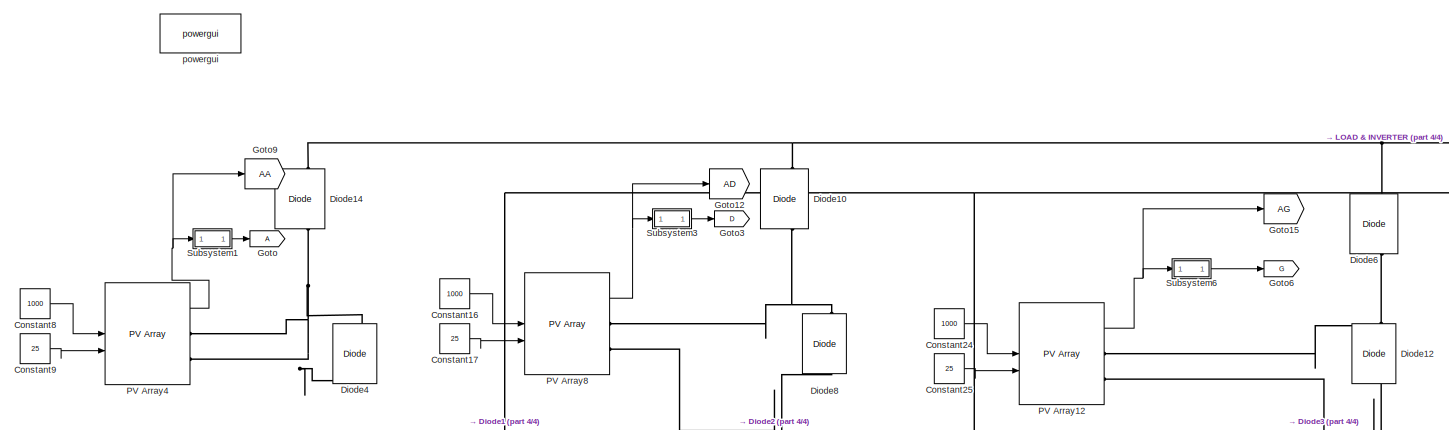
[diagram: root canvas - part 1/4, top left region]
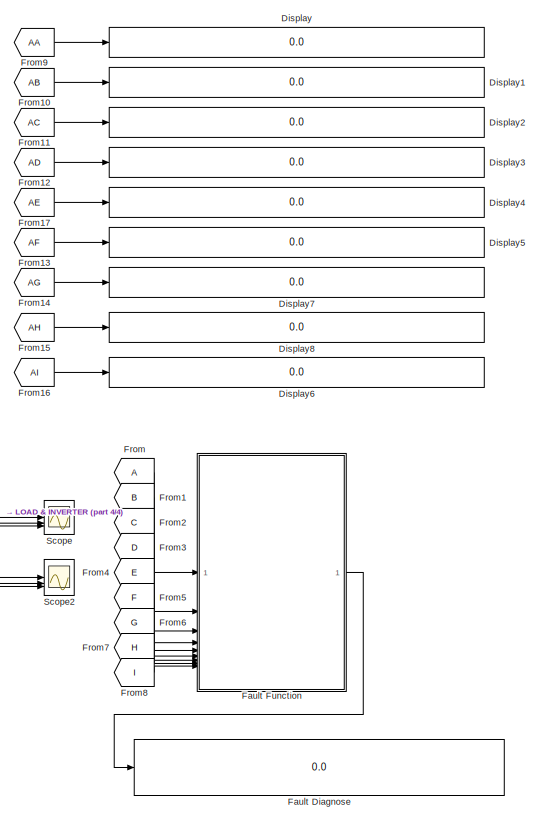
[diagram: root canvas - part 2/4, center side, full height]
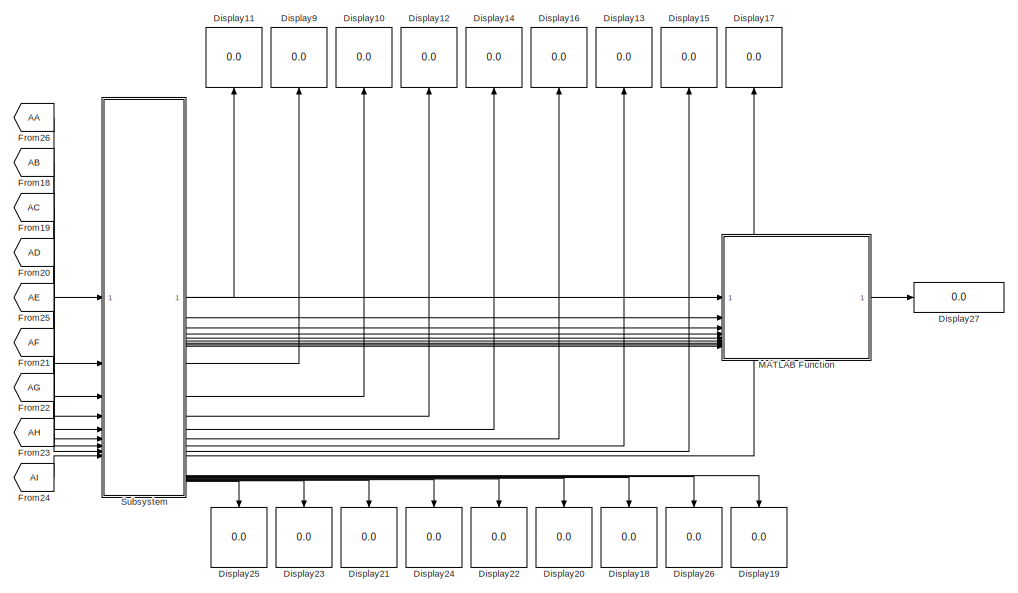
[diagram: root canvas - part 3/4, bottom right region]
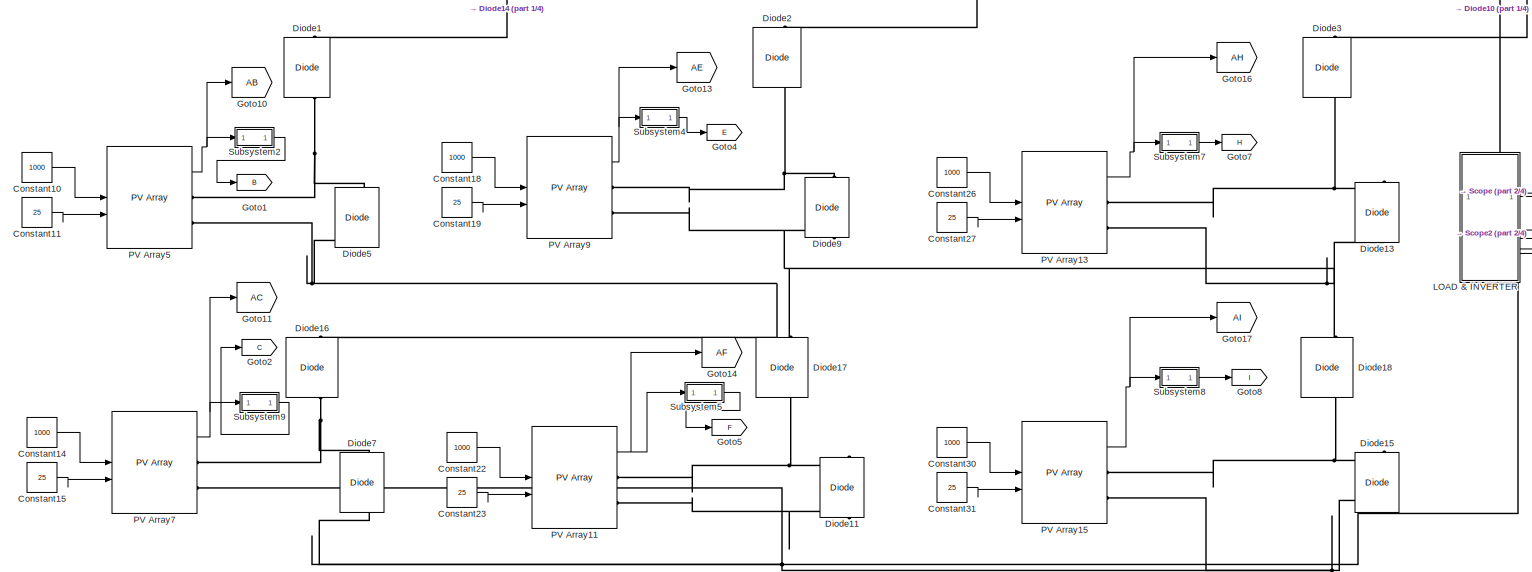
[diagram: root canvas - part 4/4, bottom left region]
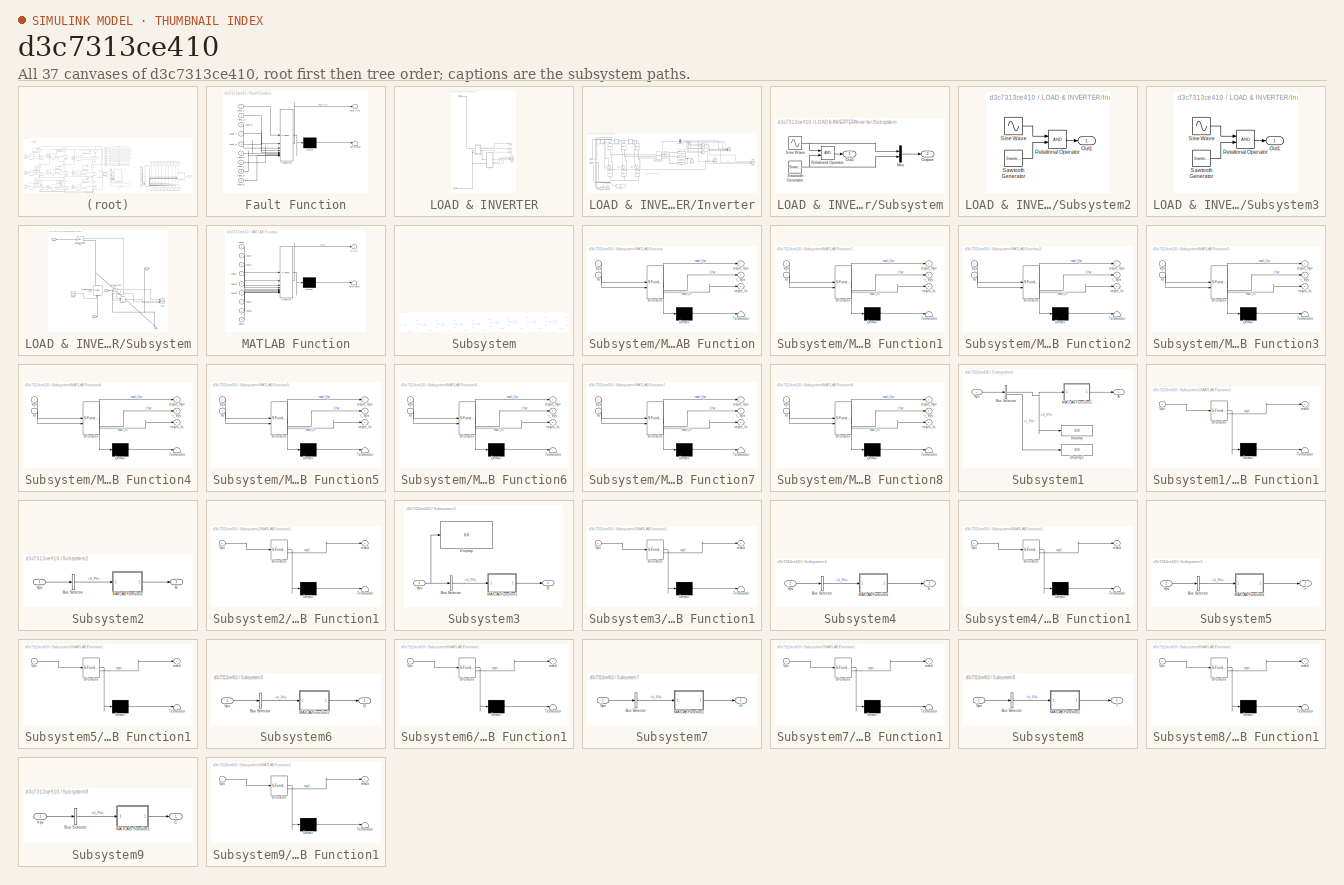
[diagram: thumbnail index - all 37 canvases of the model, root first then tree order]
MODEL slx_d3c7313ce410
KIND model
CONFIG AbsTol = auto
CONFIG EnableMultiTasking = off
CONFIG FixedStep = 1e-5
CONFIG MaxStep = auto
CONFIG MinStep = auto
CONFIG RelTol = 1e-3
CONFIG SampleTimeConstraint = Unconstrained
CONFIG SolverName = ode3
CONFIG StartTime = 0.0
CONFIG StopTime = 1
BLOCK [Constant] Constant10
  Value = 1000
BLOCK [Constant] Constant11
  NameLocation = left
  Value = 25
BLOCK [Constant] Constant14
  Value = 1000
BLOCK [Constant] Constant15
  NameLocation = left
  Value = 25
BLOCK [Constant] Constant16
  Value = 1000
BLOCK [Constant] Constant17
  NameLocation = left
  Value = 25
BLOCK [Constant] Constant18
  Value = 1000
BLOCK [Constant] Constant19
  NameLocation = left
  Value = 25
BLOCK [Constant] Constant22
  Value = 1000
BLOCK [Constant] Constant23
  NameLocation = left
  Value = 25
BLOCK [Constant] Constant24
  Value = 1000
BLOCK [Constant] Constant25
  NameLocation = left
  Value = 25
BLOCK [Constant] Constant26
  Value = 1000
BLOCK [Constant] Constant27
  NameLocation = left
  Value = 25
BLOCK [Constant] Constant30
  Value = 1000
BLOCK [Constant] Constant31
  NameLocation = left
  Value = 25
BLOCK [Constant] Constant8
  Value = 1000
BLOCK [Constant] Constant9
  NameLocation = left
  Value = 25
BLOCK [Reference] Diode1  REF=spsDiodeLib/Diode
  LibrarySourceBlock = sps_lib/Power Electronics/Diode
  NameLocation = right
  SourceBlock = spsDiodeLib/Diode
  SourceType = Diode
BLOCK [Reference] Diode10  REF=spsDiodeLib/Diode
  LibrarySourceBlock = sps_lib/Power Electronics/Diode
  NameLocation = right
  SourceBlock = spsDiodeLib/Diode
  SourceType = Diode
BLOCK [Reference] Diode11  REF=spsDiodeLib/Diode
  LibrarySourceBlock = sps_lib/Power Electronics/Diode
  NameLocation = right
  SourceBlock = spsDiodeLib/Diode
  SourceType = Diode
BLOCK [Reference] Diode12  REF=spsDiodeLib/Diode
  LibrarySourceBlock = sps_lib/Power Electronics/Diode
  NameLocation = right
  SourceBlock = spsDiodeLib/Diode
  SourceType = Diode
BLOCK [Reference] Diode13  REF=spsDiodeLib/Diode
  LibrarySourceBlock = sps_lib/Power Electronics/Diode
  NameLocation = right
  SourceBlock = spsDiodeLib/Diode
  SourceType = Diode
BLOCK [Reference] Diode14  REF=spsDiodeLib/Diode
  LibrarySourceBlock = sps_lib/Power Electronics/Diode
  NameLocation = right
  SourceBlock = spsDiodeLib/Diode
  SourceType = Diode
BLOCK [Reference] Diode15  REF=spsDiodeLib/Diode
  LibrarySourceBlock = sps_lib/Power Electronics/Diode
  NameLocation = right
  SourceBlock = spsDiodeLib/Diode
  SourceType = Diode
BLOCK [Reference] Diode16  REF=spsDiodeLib/Diode
  LibrarySourceBlock = sps_lib/Power Electronics/Diode
  NameLocation = right
  SourceBlock = spsDiodeLib/Diode
  SourceType = Diode
BLOCK [Reference] Diode17  REF=spsDiodeLib/Diode
  LibrarySourceBlock = sps_lib/Power Electronics/Diode
  NameLocation = right
  SourceBlock = spsDiodeLib/Diode
  SourceType = Diode
BLOCK [Reference] Diode18  REF=spsDiodeLib/Diode
  LibrarySourceBlock = sps_lib/Power Electronics/Diode
  NameLocation = right
  SourceBlock = spsDiodeLib/Diode
  SourceType = Diode
BLOCK [Reference] Diode2  REF=spsDiodeLib/Diode
  LibrarySourceBlock = sps_lib/Power Electronics/Diode
  NameLocation = right
  SourceBlock = spsDiodeLib/Diode
  SourceType = Diode
BLOCK [Reference] Diode3  REF=spsDiodeLib/Diode
  LibrarySourceBlock = sps_lib/Power Electronics/Diode
  NameLocation = right
  SourceBlock = spsDiodeLib/Diode
  SourceType = Diode
BLOCK [Reference] Diode4  REF=spsDiodeLib/Diode
  LibrarySourceBlock = sps_lib/Power Electronics/Diode
  NameLocation = right
  SourceBlock = spsDiodeLib/Diode
  SourceType = Diode
BLOCK [Reference] Diode5  REF=spsDiodeLib/Diode
  LibrarySourceBlock = sps_lib/Power Electronics/Diode
  NameLocation = right
  SourceBlock = spsDiodeLib/Diode
  SourceType = Diode
BLOCK [Reference] Diode6  REF=spsDiodeLib/Diode
  LibrarySourceBlock = sps_lib/Power Electronics/Diode
  NameLocation = right
  SourceBlock = spsDiodeLib/Diode
  SourceType = Diode
BLOCK [Reference] Diode7  REF=spsDiodeLib/Diode
  LibrarySourceBlock = sps_lib/Power Electronics/Diode
  NameLocation = right
  SourceBlock = spsDiodeLib/Diode
  SourceType = Diode
BLOCK [Reference] Diode8  REF=spsDiodeLib/Diode
  LibrarySourceBlock = sps_lib/Power Electronics/Diode
  NameLocation = right
  SourceBlock = spsDiodeLib/Diode
  SourceType = Diode
BLOCK [Reference] Diode9  REF=spsDiodeLib/Diode
  LibrarySourceBlock = sps_lib/Power Electronics/Diode
  NameLocation = right
  SourceBlock = spsDiodeLib/Diode
  SourceType = Diode
BLOCK [Display] Display
  Decimation = 1
BLOCK [Display] Display1
  Decimation = 1
BLOCK [Display] Display10
  Decimation = 1
  NameLocation = right
BLOCK [Display] Display11
  Decimation = 1
  NameLocation = right
BLOCK [Display] Display12
  Decimation = 1
  NameLocation = right
BLOCK [Display] Display13
  Decimation = 1
  NameLocation = right
BLOCK [Display] Display14
  Decimation = 1
  NameLocation = right
BLOCK [Display] Display15
  Decimation = 1
  NameLocation = right
BLOCK [Display] Display16
  Decimation = 1
  NameLocation = right
BLOCK [Display] Display17
  Decimation = 1
  NameLocation = right
BLOCK [Display] Display18
  Decimation = 1
  NameLocation = left
BLOCK [Display] Display19
  Decimation = 1
  NameLocation = left
BLOCK [Display] Display2
  Decimation = 1
BLOCK [Display] Display20
  Decimation = 1
  NameLocation = left
BLOCK [Display] Display21
  Decimation = 1
  NameLocation = left
BLOCK [Display] Display22
  Decimation = 1
  NameLocation = left
BLOCK [Display] Display23
  Decimation = 1
  NameLocation = left
BLOCK [Display] Display24
  Decimation = 1
  NameLocation = left
BLOCK [Display] Display25
  Decimation = 1
  NameLocation = left
BLOCK [Display] Display26
  Decimation = 1
  NameLocation = left
BLOCK [Display] Display27
  Decimation = 1
BLOCK [Display] Display3
  Decimation = 1
BLOCK [Display] Display4
  Decimation = 1
BLOCK [Display] Display5
  Decimation = 1
BLOCK [Display] Display6
  Decimation = 1
BLOCK [Display] Display7
  Decimation = 1
BLOCK [Display] Display8
  Decimation = 1
BLOCK [Display] Display9
  Decimation = 1
  NameLocation = right
BLOCK [Display] Fault Diagnose
  Decimation = 1
  Format = long
BLOCK [SubSystem] Fault Function
  ErrorFcn = Stateflow.Translate.translate
  PermitHierarchicalResolution = ExplicitOnly
  SFBlockType = MATLAB Function
  TreatAsAtomicUnit = on
BLOCK [Demux] Fault Function/ Demux 
  Outputs = 1
BLOCK [S-Function] Fault Function/ SFunction 
  EnableBusSupport = on
  FunctionName = sf_sfun
  PortCounts = [9 2]
  SFcnIsStateOwnerBlock = off
  SFunctionDeploymentMode = off
  Tag = Stateflow S-Function 2
BLOCK [Terminator] Fault Function/ Terminator 
BLOCK [Inport] Fault Function/Input_1
BLOCK [Inport] Fault Function/Input_2
  Port = 2
BLOCK [Inport] Fault Function/Input_3
  Port = 3
BLOCK [Inport] Fault Function/Input_4
  Port = 4
BLOCK [Inport] Fault Function/Input_5
  Port = 5
BLOCK [Inport] Fault Function/Input_6
  Port = 6
BLOCK [Inport] Fault Function/Input_7
  Port = 7
BLOCK [Inport] Fault Function/Input_8
  Port = 8
BLOCK [Inport] Fault Function/Input_9
  Port = 9
BLOCK [Outport] Fault Function/inputArray
BLOCK [From] From
BLOCK [From] From1
  GotoTag = B
BLOCK [From] From10
  GotoTag = AB
BLOCK [From] From11
  GotoTag = AC
BLOCK [From] From12
  GotoTag = AD
BLOCK [From] From13
  GotoTag = AF
BLOCK [From] From14
  GotoTag = AG
BLOCK [From] From15
  GotoTag = AH
BLOCK [From] From16
  GotoTag = AI
BLOCK [From] From17
  GotoTag = AE
BLOCK [From] From18
  GotoTag = AB
BLOCK [From] From19
  GotoTag = AC
BLOCK [From] From2
  GotoTag = C
BLOCK [From] From20
  GotoTag = AD
BLOCK [From] From21
  GotoTag = AF
BLOCK [From] From22
  GotoTag = AG
BLOCK [From] From23
  GotoTag = AH
BLOCK [From] From24
  GotoTag = AI
BLOCK [From] From25
  GotoTag = AE
BLOCK [From] From26
  GotoTag = AA
BLOCK [From] From3
  GotoTag = D
BLOCK [From] From4
  GotoTag = E
BLOCK [From] From5
  GotoTag = F
BLOCK [From] From6
  GotoTag = G
BLOCK [From] From7
  GotoTag = H
BLOCK [From] From8
  GotoTag = I
BLOCK [From] From9
  GotoTag = AA
BLOCK [Goto] Goto
BLOCK [Goto] Goto1
  GotoTag = B
BLOCK [Goto] Goto10
  GotoTag = AB
BLOCK [Goto] Goto11
  GotoTag = AC
BLOCK [Goto] Goto12
  GotoTag = AD
BLOCK [Goto] Goto13
  GotoTag = AE
BLOCK [Goto] Goto14
  GotoTag = AF
BLOCK [Goto] Goto15
  GotoTag = AG
BLOCK [Goto] Goto16
  GotoTag = AH
BLOCK [Goto] Goto17
  GotoTag = AI
BLOCK [Goto] Goto2
  GotoTag = C
BLOCK [Goto] Goto3
  GotoTag = D
BLOCK [Goto] Goto4
  GotoTag = E
BLOCK [Goto] Goto5
  GotoTag = F
BLOCK [Goto] Goto6
  GotoTag = G
BLOCK [Goto] Goto7
  GotoTag = H
BLOCK [Goto] Goto8
  GotoTag = I
BLOCK [Goto] Goto9
  GotoTag = AA
BLOCK [SubSystem] LOAD & INVERTER
  PortSchema = {"entries":[{"content":{"sides":[{"content":{},"type":"ConnectorPlacement.EquallySpacedRectSide","uuid":"9d5a924a-1d3a-4741-a2b7-92be7c614fd7"},{"content":{"connectorIds":["Out1","Out2","Out3","Out4","Out5","Out6"],"side":"RIGHT"},"type":"ConnectorPlacement.EquallySpacedRectSide","uuid":"42e89420-eace-4661-8437-77e02d17d38a"},{"content":{"connectorIds":["LConn1"],"side":"TOP"},"type":"ConnectorPla...<+413ch>
BLOCK [PMIOPort] LOAD & INVERTER/+
  Side = Left
BLOCK [PMIOPort] LOAD & INVERTER/-1
  Port = 2
  Side = Right
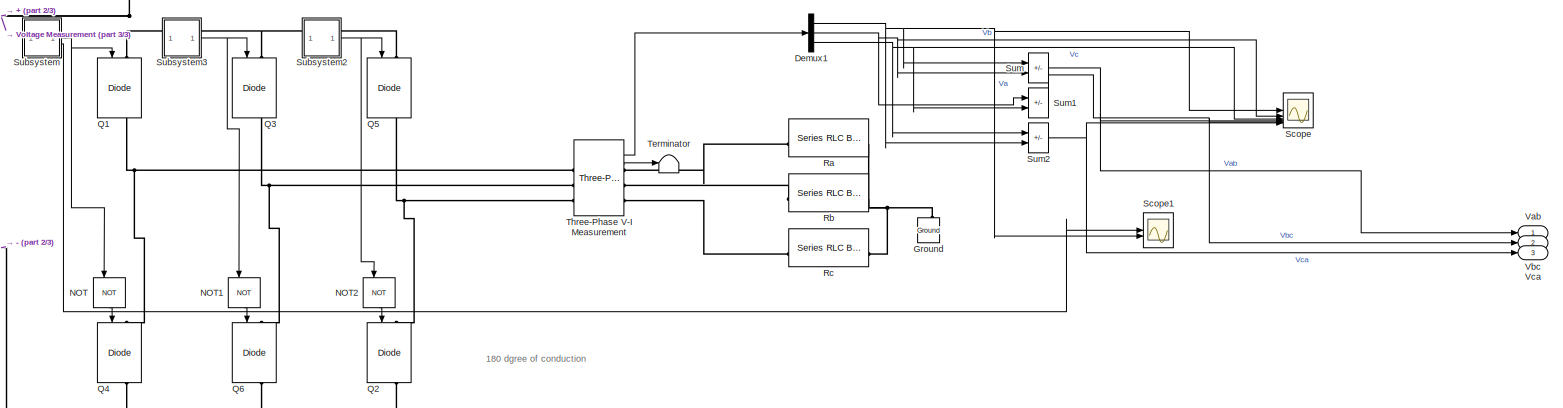
[diagram: LOAD & INVERTER/Inverter - part 1/3, full width, middle band]
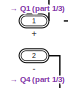
[diagram: LOAD & INVERTER/Inverter - part 2/3, middle left region]
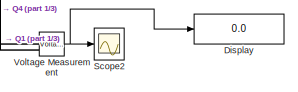
[diagram: LOAD & INVERTER/Inverter - part 3/3, bottom left region]
BLOCK [SubSystem] LOAD & INVERTER/Inverter
BLOCK [PMIOPort] LOAD & INVERTER/Inverter/+
  Side = Left
BLOCK [PMIOPort] LOAD & INVERTER/Inverter/-
  Port = 2
  Side = Left
BLOCK [Demux] LOAD & INVERTER/Inverter/Demux1
  Outputs = 3
BLOCK [Display] LOAD & INVERTER/Inverter/Display
  Decimation = 1
BLOCK [Reference] LOAD & INVERTER/Inverter/Ground  REF=spsGroundLib/Ground
  LibrarySourceBlock = sps_lib/Utilities/Ground
  NameLocation = right
  SourceBlock = spsGroundLib/Ground
  SourceType = Ground
BLOCK [Logic] LOAD & INVERTER/Inverter/NOT
  AllPortsSameDT = off
  NameLocation = left
  Operator = NOT
  OutDataTypeStr = boolean
BLOCK [Logic] LOAD & INVERTER/Inverter/NOT1
  AllPortsSameDT = off
  NameLocation = left
  Operator = NOT
  OutDataTypeStr = boolean
BLOCK [Logic] LOAD & INVERTER/Inverter/NOT2
  AllPortsSameDT = off
  NameLocation = left
  Operator = NOT
  OutDataTypeStr = boolean
BLOCK [Reference] LOAD & INVERTER/Inverter/Q1  REF=spsIGBTDiodeLib/IGBT//Diode
  LibrarySourceBlock = sps_lib/Power Electronics/IGBT//Diode
  NameLocation = left
  SourceBlock = spsIGBTDiodeLib/IGBT//Diode
  SourceType = IGBT/Diode
BLOCK [Reference] LOAD & INVERTER/Inverter/Q2  REF=spsIGBTDiodeLib/IGBT//Diode
  LibrarySourceBlock = sps_lib/Power Electronics/IGBT//Diode
  NameLocation = left
  SourceBlock = spsIGBTDiodeLib/IGBT//Diode
  SourceType = IGBT/Diode
BLOCK [Reference] LOAD & INVERTER/Inverter/Q3  REF=spsIGBTDiodeLib/IGBT//Diode
  LibrarySourceBlock = sps_lib/Power Electronics/IGBT//Diode
  NameLocation = left
  SourceBlock = spsIGBTDiodeLib/IGBT//Diode
  SourceType = IGBT/Diode
BLOCK [Reference] LOAD & INVERTER/Inverter/Q4  REF=spsIGBTDiodeLib/IGBT//Diode
  LibrarySourceBlock = sps_lib/Power Electronics/IGBT//Diode
  NameLocation = left
  SourceBlock = spsIGBTDiodeLib/IGBT//Diode
  SourceType = IGBT/Diode
BLOCK [Reference] LOAD & INVERTER/Inverter/Q5  REF=spsIGBTDiodeLib/IGBT//Diode
  LibrarySourceBlock = sps_lib/Power Electronics/IGBT//Diode
  NameLocation = left
  SourceBlock = spsIGBTDiodeLib/IGBT//Diode
  SourceType = IGBT/Diode
BLOCK [Reference] LOAD & INVERTER/Inverter/Q6  REF=spsIGBTDiodeLib/IGBT//Diode
  LibrarySourceBlock = sps_lib/Power Electronics/IGBT//Diode
  NameLocation = left
  SourceBlock = spsIGBTDiodeLib/IGBT//Diode
  SourceType = IGBT/Diode
BLOCK [Reference] LOAD & INVERTER/Inverter/Ra  REF=spsSeriesRLCBranchLib/Series RLC Branch
  LibrarySourceBlock = sps_lib/Passives/Series RLC Branch
  SourceBlock = spsSeriesRLCBranchLib/Series RLC Branch
  SourceType = Series RLC Branch
BLOCK [Reference] LOAD & INVERTER/Inverter/Rb  REF=spsSeriesRLCBranchLib/Series RLC Branch
  LibrarySourceBlock = sps_lib/Passives/Series RLC Branch
  SourceBlock = spsSeriesRLCBranchLib/Series RLC Branch
  SourceType = Series RLC Branch
BLOCK [Reference] LOAD & INVERTER/Inverter/Rc  REF=spsSeriesRLCBranchLib/Series RLC Branch
  LibrarySourceBlock = sps_lib/Passives/Series RLC Branch
  SourceBlock = spsSeriesRLCBranchLib/Series RLC Branch
  SourceType = Series RLC Branch
BLOCK [Scope] LOAD & INVERTER/Inverter/Scope
  Floating = off
  NumInputPorts = 6
  ScopeSpecificationString = Simulink.scopes.TimeScopeBlockCfg('CurrentConfiguration', extmgr.ConfigurationSet(extmgr.Configuration('Core','General UI',true),extmgr.Configuration('Core','Source UI',true),extmgr.Configuration('Sources','WiredSimulink',true,'DataLoggingVariableName','ScopeData1'),extmgr.Configuration('Visuals','Time Domain',true,'SerializedDisplays',{struct('MinYLimReal','-83.325','MaxYLimReal','83.325','YLabel...<+5497ch>
BLOCK [Scope] LOAD & INVERTER/Inverter/Scope1
  Floating = off
  NumInputPorts = 2
  ScopeSpecificationString = Simulink.scopes.TimeScopeBlockCfg('CurrentConfiguration', extmgr.ConfigurationSet(extmgr.Configuration('Core','General UI',true),extmgr.Configuration('Core','Source UI',true),extmgr.Configuration('Sources','WiredSimulink',true),extmgr.Configuration('Visuals','Time Domain',true,'SerializedDisplays',{struct('MinYLimReal','-1.25','MaxYLimReal','1.25','YLabelReal','','MinYLimMag','0.00000','MaxYLimMag...<+2263ch>
BLOCK [Scope] LOAD & INVERTER/Inverter/Scope2
  Floating = off
  NumInputPorts = 1
  ScopeSpecificationString = Simulink.scopes.TimeScopeBlockCfg('CurrentConfiguration', extmgr.ConfigurationSet(extmgr.Configuration('Core','General UI',true),extmgr.Configuration('Core','Source UI',true),extmgr.Configuration('Sources','WiredSimulink',true,'DataLoggingVariableName','ScopeData3'),extmgr.Configuration('Visuals','Time Domain',true,'SerializedDisplays',{struct('MinYLimReal','-1.00000','MaxYLimReal','1.00000','YLab...<+1430ch>
BLOCK [SubSystem] LOAD & INVERTER/Inverter/Subsystem
BLOCK [Mux] LOAD & INVERTER/Inverter/Subsystem/Mux
  DisplayOption = bar
  Inputs = 2
BLOCK [Outport] LOAD & INVERTER/Inverter/Subsystem/Out1
BLOCK [Outport] LOAD & INVERTER/Inverter/Subsystem/Outport
  Port = 2
BLOCK [RelationalOperator] LOAD & INVERTER/Inverter/Subsystem/Relational Operator
  InputSameDT = off
  OutDataTypeStr = boolean
  RndMeth = Simplest
BLOCK [Reference] LOAD & INVERTER/Inverter/Subsystem/Sawtooth Generator  REF=spsSawtoothGeneratorLib/Sawtooth
Generator
  LibrarySourceBlock = sps_lib/Sources/Signal Generator Sources/Sawtooth\nGenerator
  SourceBlock = spsSawtoothGeneratorLib/Sawtooth\nGenerator
  SourceType = Sawtooth Generator
BLOCK [Sin] LOAD & INVERTER/Inverter/Subsystem/Sine Wave
  Amplitude = 0.9
  Frequency = 2*pi*50
  SampleTime = 0
BLOCK [SubSystem] LOAD & INVERTER/Inverter/Subsystem2
BLOCK [Outport] LOAD & INVERTER/Inverter/Subsystem2/Out1
BLOCK [RelationalOperator] LOAD & INVERTER/Inverter/Subsystem2/Relational Operator
  InputSameDT = off
  OutDataTypeStr = boolean
  RndMeth = Simplest
BLOCK [Reference] LOAD & INVERTER/Inverter/Subsystem2/Sawtooth Generator  REF=spsSawtoothGeneratorLib/Sawtooth
Generator
  LibrarySourceBlock = sps_lib/Sources/Signal Generator Sources/Sawtooth\nGenerator
  SourceBlock = spsSawtoothGeneratorLib/Sawtooth\nGenerator
  SourceType = Sawtooth Generator
BLOCK [Sin] LOAD & INVERTER/Inverter/Subsystem2/Sine Wave
  Amplitude = 0.9
  Frequency = 2*pi*50
  Phase = 240*pi/180
  SampleTime = 0
BLOCK [SubSystem] LOAD & INVERTER/Inverter/Subsystem3
BLOCK [Outport] LOAD & INVERTER/Inverter/Subsystem3/Out1
BLOCK [RelationalOperator] LOAD & INVERTER/Inverter/Subsystem3/Relational Operator
  InputSameDT = off
  OutDataTypeStr = boolean
  RndMeth = Simplest
BLOCK [Reference] LOAD & INVERTER/Inverter/Subsystem3/Sawtooth Generator  REF=spsSawtoothGeneratorLib/Sawtooth
Generator
  LibrarySourceBlock = sps_lib/Sources/Signal Generator Sources/Sawtooth\nGenerator
  SourceBlock = spsSawtoothGeneratorLib/Sawtooth\nGenerator
  SourceType = Sawtooth Generator
BLOCK [Sin] LOAD & INVERTER/Inverter/Subsystem3/Sine Wave
  Amplitude = 0.9
  Frequency = 2*pi*50
  Phase = 120*pi/180
  SampleTime = 0
BLOCK [Sum] LOAD & INVERTER/Inverter/Sum
  IconShape = rectangular
  Inputs = |+-
BLOCK [Sum] LOAD & INVERTER/Inverter/Sum1
  IconShape = rectangular
  Inputs = |+-
BLOCK [Sum] LOAD & INVERTER/Inverter/Sum2
  IconShape = rectangular
  Inputs = |+-
BLOCK [Terminator] LOAD & INVERTER/Inverter/Terminator
BLOCK [Reference] LOAD & INVERTER/Inverter/Three-Phase V-I Measurement  REF=spsThreePhaseVIMeasurementLib/Three-Phase
V-I Measurement
  LibrarySourceBlock = sps_lib/Sensors and Measurements/Three-Phase\nV-I Measurement
  SourceBlock = spsThreePhaseVIMeasurementLib/Three-Phase\nV-I Measurement
  SourceType = Three-Phase VI Measurement
BLOCK [Outport] LOAD & INVERTER/Inverter/Vab
BLOCK [Outport] LOAD & INVERTER/Inverter/Vbc
  Port = 2
BLOCK [Outport] LOAD & INVERTER/Inverter/Vca
  Port = 3
BLOCK [Reference] LOAD & INVERTER/Inverter/Voltage Measurement  REF=spsVoltageMeasurementLib/Voltage Measurement
  LibrarySourceBlock = sps_lib/Sensors and Measurements/Voltage Measurement
  SourceBlock = spsVoltageMeasurementLib/Voltage Measurement
  SourceType = Voltage Measurement
  UserDataPersistent = on
BLOCK [Outport] LOAD & INVERTER/Ipv
  Port = 2
BLOCK [Outport] LOAD & INVERTER/Ppv
  Port = 3
BLOCK [SubSystem] LOAD & INVERTER/Subsystem
BLOCK [PMIOPort] LOAD & INVERTER/Subsystem/+
  Side = Left
BLOCK [PMIOPort] LOAD & INVERTER/Subsystem/+1
  Port = 2
  Side = Right
BLOCK [PMIOPort] LOAD & INVERTER/Subsystem/-
  Port = 3
  Side = Left
BLOCK [PMIOPort] LOAD & INVERTER/Subsystem/-1
  Port = 4
  Side = Left
BLOCK [Reference] LOAD & INVERTER/Subsystem/Controlled Voltage Source  REF=spsControlledVoltageSourceLib/Controlled Voltage Source
  LibrarySourceBlock = sps_lib/Sources/Controlled Voltage Source
  SourceBlock = spsControlledVoltageSourceLib/Controlled Voltage Source
  SourceType = Controlled Voltage Source
BLOCK [Reference] LOAD & INVERTER/Subsystem/Current Measurement  REF=spsCurrentMeasurementLib/Current Measurement
  LibrarySourceBlock = sps_lib/Sensors and Measurements/Current Measurement
  SourceBlock = spsCurrentMeasurementLib/Current Measurement
  SourceType = Current Measurement
  UserDataPersistent = on
BLOCK [Outport] LOAD & INVERTER/Subsystem/Out3
  Port = 3
BLOCK [Product] LOAD & INVERTER/Subsystem/Product
BLOCK [Reference] LOAD & INVERTER/Subsystem/Ramp  REF=simulink/Sources/Ramp
  SourceBlock = simulink/Sources/Ramp
  SourceType = Ramp
BLOCK [Reference] LOAD & INVERTER/Subsystem/Voltage Measurement  REF=spsVoltageMeasurementLib/Voltage Measurement
  LibrarySourceBlock = sps_lib/Sensors and Measurements/Voltage Measurement
  SourceBlock = spsVoltageMeasurementLib/Voltage Measurement
  SourceType = Voltage Measurement
  UserDataPersistent = on
BLOCK [Outport] LOAD & INVERTER/Subsystem/i
  Port = 2
BLOCK [Outport] LOAD & INVERTER/Subsystem/v
BLOCK [Outport] LOAD & INVERTER/Vab
  Port = 4
BLOCK [Outport] LOAD & INVERTER/Vbc
  Port = 5
BLOCK [Outport] LOAD & INVERTER/Vca
  Port = 6
BLOCK [Outport] LOAD & INVERTER/Vpv
BLOCK [SubSystem] MATLAB Function
  ErrorFcn = Stateflow.Translate.translate
  PermitHierarchicalResolution = ExplicitOnly
  SFBlockType = MATLAB Function
  TreatAsAtomicUnit = on
BLOCK [Demux] MATLAB Function/ Demux 
  Outputs = 1
BLOCK [S-Function] MATLAB Function/ SFunction 
  EnableBusSupport = on
  FunctionName = sf_sfun
  PortCounts = [9 2]
  SFcnIsStateOwnerBlock = off
  SFunctionDeploymentMode = off
  Tag = Stateflow S-Function 20
BLOCK [Terminator] MATLAB Function/ Terminator 
BLOCK [Outport] MATLAB Function/FAULT
BLOCK [Inport] MATLAB Function/input1
BLOCK [Inport] MATLAB Function/input2
  Port = 2
BLOCK [Inport] MATLAB Function/input3
  Port = 3
BLOCK [Inport] MATLAB Function/input4
  Port = 4
BLOCK [Inport] MATLAB Function/input5
  Port = 5
BLOCK [Inport] MATLAB Function/input6
  Port = 6
BLOCK [Inport] MATLAB Function/input7
  Port = 7
BLOCK [Inport] MATLAB Function/input8
  Port = 8
BLOCK [Inport] MATLAB Function/input9
  Port = 9
BLOCK [Reference] PV Array11  REF=spsPVArrayLib/PV Array
  LibrarySourceBlock = sps_lib/Sources/PV Array
  SourceBlock = spsPVArrayLib/PV Array
  SourceType = PV array
BLOCK [Reference] PV Array12  REF=spsPVArrayLib/PV Array
  LibrarySourceBlock = sps_lib/Sources/PV Array
  SourceBlock = spsPVArrayLib/PV Array
  SourceType = PV array
BLOCK [Reference] PV Array13  REF=spsPVArrayLib/PV Array
  LibrarySourceBlock = sps_lib/Sources/PV Array
  SourceBlock = spsPVArrayLib/PV Array
  SourceType = PV array
BLOCK [Reference] PV Array15  REF=spsPVArrayLib/PV Array
  LibrarySourceBlock = sps_lib/Sources/PV Array
  SourceBlock = spsPVArrayLib/PV Array
  SourceType = PV array
BLOCK [Reference] PV Array4  REF=spsPVArrayLib/PV Array
  LibrarySourceBlock = sps_lib/Sources/PV Array
  SourceBlock = spsPVArrayLib/PV Array
  SourceType = PV array
BLOCK [Reference] PV Array5  REF=spsPVArrayLib/PV Array
  LibrarySourceBlock = sps_lib/Sources/PV Array
  SourceBlock = spsPVArrayLib/PV Array
  SourceType = PV array
BLOCK [Reference] PV Array7  REF=spsPVArrayLib/PV Array
  LibrarySourceBlock = sps_lib/Sources/PV Array
  SourceBlock = spsPVArrayLib/PV Array
  SourceType = PV array
BLOCK [Reference] PV Array8  REF=spsPVArrayLib/PV Array
  LibrarySourceBlock = sps_lib/Sources/PV Array
  SourceBlock = spsPVArrayLib/PV Array
  SourceType = PV array
BLOCK [Reference] PV Array9  REF=spsPVArrayLib/PV Array
  LibrarySourceBlock = sps_lib/Sources/PV Array
  SourceBlock = spsPVArrayLib/PV Array
  SourceType = PV array
BLOCK [Scope] Scope
  Floating = off
  NumInputPorts = 3
  ScopeSpecificationString = Simulink.scopes.TimeScopeBlockCfg('CurrentConfiguration', extmgr.ConfigurationSet(extmgr.Configuration('Core','General UI',true),extmgr.Configuration('Core','Source UI',true),extmgr.Configuration('Sources','WiredSimulink',true),extmgr.Configuration('Visuals','Time Domain',true,'SerializedDisplays',{struct('MinYLimReal','-6.12236','MaxYLimReal','55.10122','YLabelReal','','MinYLimMag','0.00000','Max...<+2933ch>
BLOCK [Scope] Scope2
  Floating = off
  NumInputPorts = 3
  ScopeSpecificationString = Simulink.scopes.TimeScopeBlockCfg('CurrentConfiguration', extmgr.ConfigurationSet(extmgr.Configuration('Core','General UI',true),extmgr.Configuration('Core','Source UI',true),extmgr.Configuration('Sources','WiredSimulink',true,'DataLoggingVariableName','ScopeData1'),extmgr.Configuration('Visuals','Time Domain',true,'SerializedDisplays',{struct('MinYLimReal','-138.22886','MaxYLimReal','137.16394','...<+3093ch>
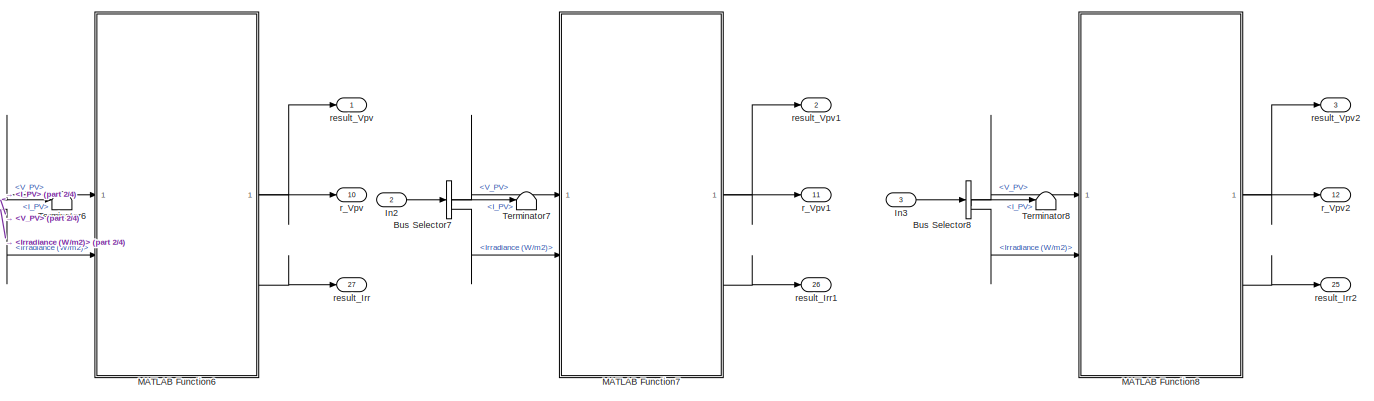
[diagram: Subsystem - part 1/4, right side, full height]
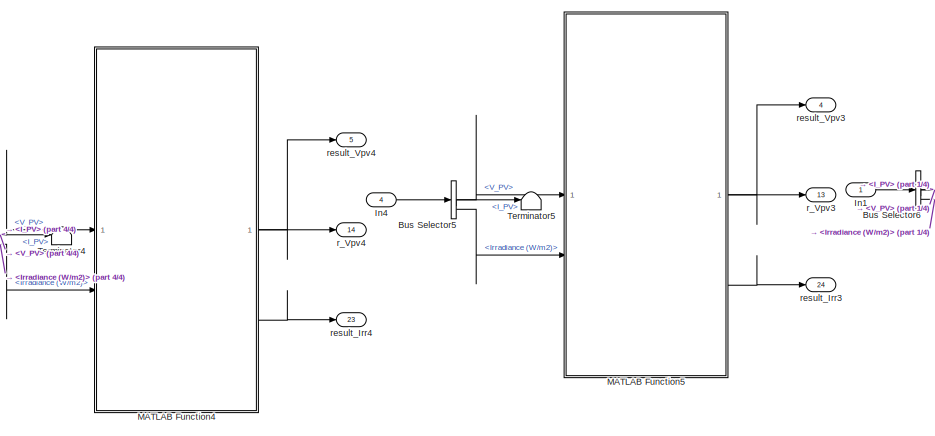
[diagram: Subsystem - part 2/4, center side, full height]
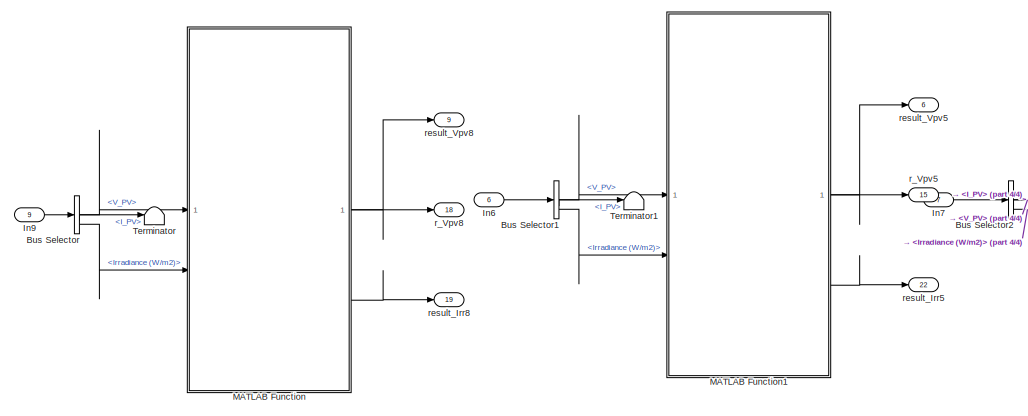
[diagram: Subsystem - part 3/4, left side, full height]
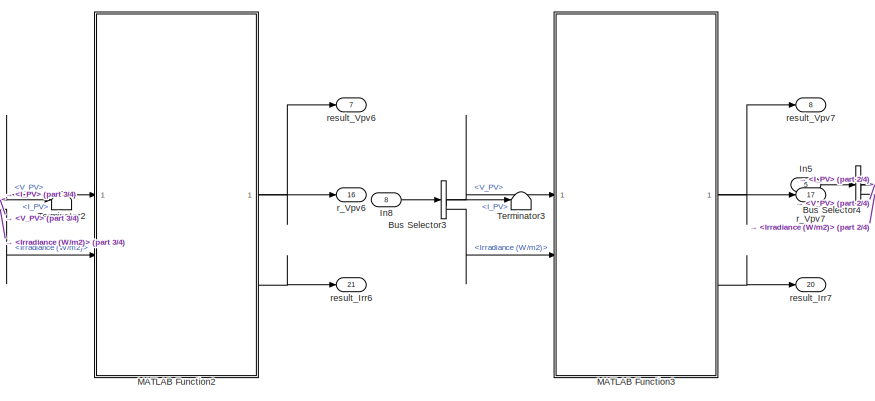
[diagram: Subsystem - part 4/4, center side, full height]
BLOCK [SubSystem] Subsystem
BLOCK [BusSelector] Subsystem/Bus Selector
  OutputSignals = V_PV,I_PV,Irradiance (W/m2)
BLOCK [BusSelector] Subsystem/Bus Selector1
  OutputSignals = V_PV,I_PV,Irradiance (W/m2)
BLOCK [BusSelector] Subsystem/Bus Selector2
  OutputSignals = V_PV,I_PV,Irradiance (W/m2)
BLOCK [BusSelector] Subsystem/Bus Selector3
  OutputSignals = V_PV,I_PV,Irradiance (W/m2)
BLOCK [BusSelector] Subsystem/Bus Selector4
  OutputSignals = V_PV,I_PV,Irradiance (W/m2)
BLOCK [BusSelector] Subsystem/Bus Selector5
  OutputSignals = V_PV,I_PV,Irradiance (W/m2)
BLOCK [BusSelector] Subsystem/Bus Selector6
  OutputSignals = V_PV,I_PV,Irradiance (W/m2)
BLOCK [BusSelector] Subsystem/Bus Selector7
  OutputSignals = V_PV,I_PV,Irradiance (W/m2)
BLOCK [BusSelector] Subsystem/Bus Selector8
  OutputSignals = V_PV,I_PV,Irradiance (W/m2)
BLOCK [Inport] Subsystem/In1
BLOCK [Inport] Subsystem/In2
  Port = 2
BLOCK [Inport] Subsystem/In3
  Port = 3
BLOCK [Inport] Subsystem/In4
  Port = 4
BLOCK [Inport] Subsystem/In5
  Port = 5
BLOCK [Inport] Subsystem/In6
  Port = 6
BLOCK [Inport] Subsystem/In7
  Port = 7
BLOCK [Inport] Subsystem/In8
  Port = 8
BLOCK [Inport] Subsystem/In9
  Port = 9
BLOCK [SubSystem] Subsystem/MATLAB Function
  ErrorFcn = Stateflow.Translate.translate
  PermitHierarchicalResolution = ExplicitOnly
  SFBlockType = MATLAB Function
  TreatAsAtomicUnit = on
BLOCK [Demux] Subsystem/MATLAB Function/ Demux 
  Outputs = 1
BLOCK [S-Function] Subsystem/MATLAB Function/ SFunction 
  EnableBusSupport = on
  FunctionName = sf_sfun
  PortCounts = [2 4]
  SFcnIsStateOwnerBlock = off
  SFunctionDeploymentMode = off
  Tag = Stateflow S-Function 11
BLOCK [Terminator] Subsystem/MATLAB Function/ Terminator 
BLOCK [Inport] Subsystem/MATLAB Function/Irr
  Port = 2
BLOCK [Inport] Subsystem/MATLAB Function/Vpv
BLOCK [Outport] Subsystem/MATLAB Function/r_Vpv
  Port = 2
BLOCK [Outport] Subsystem/MATLAB Function/result_Irr
  Port = 3
BLOCK [Outport] Subsystem/MATLAB Function/result_Vpv
BLOCK [SubSystem] Subsystem/MATLAB Function1
  ErrorFcn = Stateflow.Translate.translate
  PermitHierarchicalResolution = ExplicitOnly
  SFBlockType = MATLAB Function
  TreatAsAtomicUnit = on
BLOCK [Demux] Subsystem/MATLAB Function1/ Demux 
  Outputs = 1
BLOCK [S-Function] Subsystem/MATLAB Function1/ SFunction 
  EnableBusSupport = on
  FunctionName = sf_sfun
  PortCounts = [2 4]
  SFcnIsStateOwnerBlock = off
  SFunctionDeploymentMode = off
  Tag = Stateflow S-Function 12
BLOCK [Terminator] Subsystem/MATLAB Function1/ Terminator 
BLOCK [Inport] Subsystem/MATLAB Function1/Irr
  Port = 2
BLOCK [Inport] Subsystem/MATLAB Function1/Vpv
BLOCK [Outport] Subsystem/MATLAB Function1/r_Vpv
  Port = 2
BLOCK [Outport] Subsystem/MATLAB Function1/result_Irr
  Port = 3
BLOCK [Outport] Subsystem/MATLAB Function1/result_Vpv
BLOCK [SubSystem] Subsystem/MATLAB Function2
  ErrorFcn = Stateflow.Translate.translate
  PermitHierarchicalResolution = ExplicitOnly
  SFBlockType = MATLAB Function
  TreatAsAtomicUnit = on
BLOCK [Demux] Subsystem/MATLAB Function2/ Demux 
  Outputs = 1
BLOCK [S-Function] Subsystem/MATLAB Function2/ SFunction 
  EnableBusSupport = on
  FunctionName = sf_sfun
  PortCounts = [2 4]
  SFcnIsStateOwnerBlock = off
  SFunctionDeploymentMode = off
  Tag = Stateflow S-Function 13
BLOCK [Terminator] Subsystem/MATLAB Function2/ Terminator 
BLOCK [Inport] Subsystem/MATLAB Function2/Irr
  Port = 2
BLOCK [Inport] Subsystem/MATLAB Function2/Vpv
BLOCK [Outport] Subsystem/MATLAB Function2/r_Vpv
  Port = 2
BLOCK [Outport] Subsystem/MATLAB Function2/result_Irr
  Port = 3
BLOCK [Outport] Subsystem/MATLAB Function2/result_Vpv
BLOCK [SubSystem] Subsystem/MATLAB Function3
  ErrorFcn = Stateflow.Translate.translate
  PermitHierarchicalResolution = ExplicitOnly
  SFBlockType = MATLAB Function
  TreatAsAtomicUnit = on
BLOCK [Demux] Subsystem/MATLAB Function3/ Demux 
  Outputs = 1
BLOCK [S-Function] Subsystem/MATLAB Function3/ SFunction 
  EnableBusSupport = on
  FunctionName = sf_sfun
  PortCounts = [2 4]
  SFcnIsStateOwnerBlock = off
  SFunctionDeploymentMode = off
  Tag = Stateflow S-Function 14
BLOCK [Terminator] Subsystem/MATLAB Function3/ Terminator 
BLOCK [Inport] Subsystem/MATLAB Function3/Irr
  Port = 2
BLOCK [Inport] Subsystem/MATLAB Function3/Vpv
BLOCK [Outport] Subsystem/MATLAB Function3/r_Vpv
  Port = 2
BLOCK [Outport] Subsystem/MATLAB Function3/result_Irr
  Port = 3
BLOCK [Outport] Subsystem/MATLAB Function3/result_Vpv
BLOCK [SubSystem] Subsystem/MATLAB Function4
  ErrorFcn = Stateflow.Translate.translate
  PermitHierarchicalResolution = ExplicitOnly
  SFBlockType = MATLAB Function
  TreatAsAtomicUnit = on
BLOCK [Demux] Subsystem/MATLAB Function4/ Demux 
  Outputs = 1
BLOCK [S-Function] Subsystem/MATLAB Function4/ SFunction 
  EnableBusSupport = on
  FunctionName = sf_sfun
  PortCounts = [2 4]
  SFcnIsStateOwnerBlock = off
  SFunctionDeploymentMode = off
  Tag = Stateflow S-Function 15
BLOCK [Terminator] Subsystem/MATLAB Function4/ Terminator 
BLOCK [Inport] Subsystem/MATLAB Function4/Irr
  Port = 2
BLOCK [Inport] Subsystem/MATLAB Function4/Vpv
BLOCK [Outport] Subsystem/MATLAB Function4/r_Vpv
  Port = 2
BLOCK [Outport] Subsystem/MATLAB Function4/result_Irr
  Port = 3
BLOCK [Outport] Subsystem/MATLAB Function4/result_Vpv
BLOCK [SubSystem] Subsystem/MATLAB Function5
  ErrorFcn = Stateflow.Translate.translate
  PermitHierarchicalResolution = ExplicitOnly
  SFBlockType = MATLAB Function
  TreatAsAtomicUnit = on
BLOCK [Demux] Subsystem/MATLAB Function5/ Demux 
  Outputs = 1
BLOCK [S-Function] Subsystem/MATLAB Function5/ SFunction 
  EnableBusSupport = on
  FunctionName = sf_sfun
  PortCounts = [2 4]
  SFcnIsStateOwnerBlock = off
  SFunctionDeploymentMode = off
  Tag = Stateflow S-Function 16
BLOCK [Terminator] Subsystem/MATLAB Function5/ Terminator 
BLOCK [Inport] Subsystem/MATLAB Function5/Irr
  Port = 2
BLOCK [Inport] Subsystem/MATLAB Function5/Vpv
BLOCK [Outport] Subsystem/MATLAB Function5/r_Vpv
  Port = 2
BLOCK [Outport] Subsystem/MATLAB Function5/result_Irr
  Port = 3
BLOCK [Outport] Subsystem/MATLAB Function5/result_Vpv
BLOCK [SubSystem] Subsystem/MATLAB Function6
  ErrorFcn = Stateflow.Translate.translate
  PermitHierarchicalResolution = ExplicitOnly
  SFBlockType = MATLAB Function
  TreatAsAtomicUnit = on
BLOCK [Demux] Subsystem/MATLAB Function6/ Demux 
  Outputs = 1
BLOCK [S-Function] Subsystem/MATLAB Function6/ SFunction 
  EnableBusSupport = on
  FunctionName = sf_sfun
  PortCounts = [2 4]
  SFcnIsStateOwnerBlock = off
  SFunctionDeploymentMode = off
  Tag = Stateflow S-Function 17
BLOCK [Terminator] Subsystem/MATLAB Function6/ Terminator 
BLOCK [Inport] Subsystem/MATLAB Function6/Irr
  Port = 2
BLOCK [Inport] Subsystem/MATLAB Function6/Vpv
BLOCK [Outport] Subsystem/MATLAB Function6/r_Vpv
  Port = 2
BLOCK [Outport] Subsystem/MATLAB Function6/result_Irr
  Port = 3
BLOCK [Outport] Subsystem/MATLAB Function6/result_Vpv
BLOCK [SubSystem] Subsystem/MATLAB Function7
  ErrorFcn = Stateflow.Translate.translate
  PermitHierarchicalResolution = ExplicitOnly
  SFBlockType = MATLAB Function
  TreatAsAtomicUnit = on
BLOCK [Demux] Subsystem/MATLAB Function7/ Demux 
  Outputs = 1
BLOCK [S-Function] Subsystem/MATLAB Function7/ SFunction 
  EnableBusSupport = on
  FunctionName = sf_sfun
  PortCounts = [2 4]
  SFcnIsStateOwnerBlock = off
  SFunctionDeploymentMode = off
  Tag = Stateflow S-Function 18
BLOCK [Terminator] Subsystem/MATLAB Function7/ Terminator 
BLOCK [Inport] Subsystem/MATLAB Function7/Irr
  Port = 2
BLOCK [Inport] Subsystem/MATLAB Function7/Vpv
BLOCK [Outport] Subsystem/MATLAB Function7/r_Vpv
  Port = 2
BLOCK [Outport] Subsystem/MATLAB Function7/result_Irr
  Port = 3
BLOCK [Outport] Subsystem/MATLAB Function7/result_Vpv
BLOCK [SubSystem] Subsystem/MATLAB Function8
  ErrorFcn = Stateflow.Translate.translate
  PermitHierarchicalResolution = ExplicitOnly
  SFBlockType = MATLAB Function
  TreatAsAtomicUnit = on
BLOCK [Demux] Subsystem/MATLAB Function8/ Demux 
  Outputs = 1
BLOCK [S-Function] Subsystem/MATLAB Function8/ SFunction 
  EnableBusSupport = on
  FunctionName = sf_sfun
  PortCounts = [2 4]
  SFcnIsStateOwnerBlock = off
  SFunctionDeploymentMode = off
  Tag = Stateflow S-Function 19
BLOCK [Terminator] Subsystem/MATLAB Function8/ Terminator 
BLOCK [Inport] Subsystem/MATLAB Function8/Irr
  Port = 2
BLOCK [Inport] Subsystem/MATLAB Function8/Vpv
BLOCK [Outport] Subsystem/MATLAB Function8/r_Vpv
  Port = 2
BLOCK [Outport] Subsystem/MATLAB Function8/result_Irr
  Port = 3
BLOCK [Outport] Subsystem/MATLAB Function8/result_Vpv
BLOCK [Terminator] Subsystem/Terminator
BLOCK [Terminator] Subsystem/Terminator1
BLOCK [Terminator] Subsystem/Terminator2
BLOCK [Terminator] Subsystem/Terminator3
BLOCK [Terminator] Subsystem/Terminator4
BLOCK [Terminator] Subsystem/Terminator5
BLOCK [Terminator] Subsystem/Terminator6
BLOCK [Terminator] Subsystem/Terminator7
BLOCK [Terminator] Subsystem/Terminator8
BLOCK [Outport] Subsystem/r_Vpv
  Port = 10
BLOCK [Outport] Subsystem/r_Vpv1
  Port = 11
BLOCK [Outport] Subsystem/r_Vpv2
  Port = 12
BLOCK [Outport] Subsystem/r_Vpv3
  Port = 13
BLOCK [Outport] Subsystem/r_Vpv4
  Port = 14
BLOCK [Outport] Subsystem/r_Vpv5
  Port = 15
BLOCK [Outport] Subsystem/r_Vpv6
  Port = 16
BLOCK [Outport] Subsystem/r_Vpv7
  Port = 17
BLOCK [Outport] Subsystem/r_Vpv8
  Port = 18
BLOCK [Outport] Subsystem/result_Irr
  Port = 27
BLOCK [Outport] Subsystem/result_Irr1
  Port = 26
BLOCK [Outport] Subsystem/result_Irr2
  Port = 25
BLOCK [Outport] Subsystem/result_Irr3
  Port = 24
BLOCK [Outport] Subsystem/result_Irr4
  Port = 23
BLOCK [Outport] Subsystem/result_Irr5
  Port = 22
BLOCK [Outport] Subsystem/result_Irr6
  Port = 21
BLOCK [Outport] Subsystem/result_Irr7
  Port = 20
BLOCK [Outport] Subsystem/result_Irr8
  Port = 19
BLOCK [Outport] Subsystem/result_Vpv
BLOCK [Outport] Subsystem/result_Vpv1
  Port = 2
BLOCK [Outport] Subsystem/result_Vpv2
  Port = 3
BLOCK [Outport] Subsystem/result_Vpv3
  Port = 4
BLOCK [Outport] Subsystem/result_Vpv4
  Port = 5
BLOCK [Outport] Subsystem/result_Vpv5
  Port = 6
BLOCK [Outport] Subsystem/result_Vpv6
  Port = 7
BLOCK [Outport] Subsystem/result_Vpv7
  Port = 8
BLOCK [Outport] Subsystem/result_Vpv8
  Port = 9
BLOCK [SubSystem] Subsystem1
BLOCK [Outport] Subsystem1/A
BLOCK [BusSelector] Subsystem1/Bus Selector
  OutputSignals = V_PV,I_PV
BLOCK [Display] Subsystem1/Display
  Decimation = 1
BLOCK [Display] Subsystem1/Display1
  Decimation = 1
BLOCK [SubSystem] Subsystem1/MATLAB Function1
  ErrorFcn = Stateflow.Translate.translate
  PermitHierarchicalResolution = ExplicitOnly
  SFBlockType = MATLAB Function
  TreatAsAtomicUnit = on
BLOCK [Demux] Subsystem1/MATLAB Function1/ Demux 
  Outputs = 1
BLOCK [S-Function] Subsystem1/MATLAB Function1/ SFunction 
  EnableBusSupport = on
  FunctionName = sf_sfun
  PortCounts = [1 2]
  SFcnIsStateOwnerBlock = off
  SFunctionDeploymentMode = off
  Tag = Stateflow S-Function 1
BLOCK [Terminator] Subsystem1/MATLAB Function1/ Terminator 
BLOCK [Inport] Subsystem1/MATLAB Function1/Vpv
BLOCK [Outport] Subsystem1/MATLAB Function1/result
BLOCK [Inport] Subsystem1/Vpv
BLOCK [SubSystem] Subsystem2
BLOCK [Outport] Subsystem2/B
BLOCK [BusSelector] Subsystem2/Bus Selector
  OutputSignals = V_PV
BLOCK [SubSystem] Subsystem2/MATLAB Function1
  ErrorFcn = Stateflow.Translate.translate
  PermitHierarchicalResolution = ExplicitOnly
  SFBlockType = MATLAB Function
  TreatAsAtomicUnit = on
BLOCK [Demux] Subsystem2/MATLAB Function1/ Demux 
  Outputs = 1
BLOCK [S-Function] Subsystem2/MATLAB Function1/ SFunction 
  EnableBusSupport = on
  FunctionName = sf_sfun
  PortCounts = [1 2]
  SFcnIsStateOwnerBlock = off
  SFunctionDeploymentMode = off
  Tag = Stateflow S-Function 3
BLOCK [Terminator] Subsystem2/MATLAB Function1/ Terminator 
BLOCK [Inport] Subsystem2/MATLAB Function1/Vpv
BLOCK [Outport] Subsystem2/MATLAB Function1/result
BLOCK [Inport] Subsystem2/Vpv
BLOCK [SubSystem] Subsystem3
BLOCK [BusSelector] Subsystem3/Bus Selector
  OutputSignals = V_PV
BLOCK [Outport] Subsystem3/D
BLOCK [Display] Subsystem3/Display
  Decimation = 1
BLOCK [SubSystem] Subsystem3/MATLAB Function1
  ErrorFcn = Stateflow.Translate.translate
  PermitHierarchicalResolution = ExplicitOnly
  SFBlockType = MATLAB Function
  TreatAsAtomicUnit = on
BLOCK [Demux] Subsystem3/MATLAB Function1/ Demux 
  Outputs = 1
BLOCK [S-Function] Subsystem3/MATLAB Function1/ SFunction 
  EnableBusSupport = on
  FunctionName = sf_sfun
  PortCounts = [1 2]
  SFcnIsStateOwnerBlock = off
  SFunctionDeploymentMode = off
  Tag = Stateflow S-Function 5
BLOCK [Terminator] Subsystem3/MATLAB Function1/ Terminator 
BLOCK [Inport] Subsystem3/MATLAB Function1/Vpv
BLOCK [Outport] Subsystem3/MATLAB Function1/result
BLOCK [Inport] Subsystem3/Vpv
BLOCK [SubSystem] Subsystem4
BLOCK [BusSelector] Subsystem4/Bus Selector
  OutputSignals = V_PV
BLOCK [Outport] Subsystem4/E
BLOCK [SubSystem] Subsystem4/MATLAB Function1
  ErrorFcn = Stateflow.Translate.translate
  PermitHierarchicalResolution = ExplicitOnly
  SFBlockType = MATLAB Function
  TreatAsAtomicUnit = on
BLOCK [Demux] Subsystem4/MATLAB Function1/ Demux 
  Outputs = 1
BLOCK [S-Function] Subsystem4/MATLAB Function1/ SFunction 
  EnableBusSupport = on
  FunctionName = sf_sfun
  PortCounts = [1 2]
  SFcnIsStateOwnerBlock = off
  SFunctionDeploymentMode = off
  Tag = Stateflow S-Function 6
BLOCK [Terminator] Subsystem4/MATLAB Function1/ Terminator 
BLOCK [Inport] Subsystem4/MATLAB Function1/Vpv
BLOCK [Outport] Subsystem4/MATLAB Function1/result
BLOCK [Inport] Subsystem4/Vpv
BLOCK [SubSystem] Subsystem5
BLOCK [BusSelector] Subsystem5/Bus Selector
  OutputSignals = V_PV
BLOCK [Outport] Subsystem5/F
BLOCK [SubSystem] Subsystem5/MATLAB Function1
  ErrorFcn = Stateflow.Translate.translate
  PermitHierarchicalResolution = ExplicitOnly
  SFBlockType = MATLAB Function
  TreatAsAtomicUnit = on
BLOCK [Demux] Subsystem5/MATLAB Function1/ Demux 
  Outputs = 1
BLOCK [S-Function] Subsystem5/MATLAB Function1/ SFunction 
  EnableBusSupport = on
  FunctionName = sf_sfun
  PortCounts = [1 2]
  SFcnIsStateOwnerBlock = off
  SFunctionDeploymentMode = off
  Tag = Stateflow S-Function 7
BLOCK [Terminator] Subsystem5/MATLAB Function1/ Terminator 
BLOCK [Inport] Subsystem5/MATLAB Function1/Vpv
BLOCK [Outport] Subsystem5/MATLAB Function1/result
BLOCK [Inport] Subsystem5/Vpv
BLOCK [SubSystem] Subsystem6
BLOCK [BusSelector] Subsystem6/Bus Selector
  OutputSignals = V_PV
BLOCK [Outport] Subsystem6/G
BLOCK [SubSystem] Subsystem6/MATLAB Function1
  ErrorFcn = Stateflow.Translate.translate
  PermitHierarchicalResolution = ExplicitOnly
  SFBlockType = MATLAB Function
  TreatAsAtomicUnit = on
BLOCK [Demux] Subsystem6/MATLAB Function1/ Demux 
  Outputs = 1
BLOCK [S-Function] Subsystem6/MATLAB Function1/ SFunction 
  EnableBusSupport = on
  FunctionName = sf_sfun
  PortCounts = [1 2]
  SFcnIsStateOwnerBlock = off
  SFunctionDeploymentMode = off
  Tag = Stateflow S-Function 8
BLOCK [Terminator] Subsystem6/MATLAB Function1/ Terminator 
BLOCK [Inport] Subsystem6/MATLAB Function1/Vpv
BLOCK [Outport] Subsystem6/MATLAB Function1/result
BLOCK [Inport] Subsystem6/Vpv
BLOCK [SubSystem] Subsystem7
BLOCK [BusSelector] Subsystem7/Bus Selector
  OutputSignals = V_PV
BLOCK [Outport] Subsystem7/H
BLOCK [SubSystem] Subsystem7/MATLAB Function1
  ErrorFcn = Stateflow.Translate.translate
  PermitHierarchicalResolution = ExplicitOnly
  SFBlockType = MATLAB Function
  TreatAsAtomicUnit = on
BLOCK [Demux] Subsystem7/MATLAB Function1/ Demux 
  Outputs = 1
BLOCK [S-Function] Subsystem7/MATLAB Function1/ SFunction 
  EnableBusSupport = on
  FunctionName = sf_sfun
  PortCounts = [1 2]
  SFcnIsStateOwnerBlock = off
  SFunctionDeploymentMode = off
  Tag = Stateflow S-Function 9
BLOCK [Terminator] Subsystem7/MATLAB Function1/ Terminator 
BLOCK [Inport] Subsystem7/MATLAB Function1/Vpv
BLOCK [Outport] Subsystem7/MATLAB Function1/result
BLOCK [Inport] Subsystem7/Vpv
BLOCK [SubSystem] Subsystem8
BLOCK [BusSelector] Subsystem8/Bus Selector
  OutputSignals = V_PV
BLOCK [Outport] Subsystem8/I
BLOCK [SubSystem] Subsystem8/MATLAB Function1
  ErrorFcn = Stateflow.Translate.translate
  PermitHierarchicalResolution = ExplicitOnly
  SFBlockType = MATLAB Function
  TreatAsAtomicUnit = on
BLOCK [Demux] Subsystem8/MATLAB Function1/ Demux 
  Outputs = 1
BLOCK [S-Function] Subsystem8/MATLAB Function1/ SFunction 
  EnableBusSupport = on
  FunctionName = sf_sfun
  PortCounts = [1 2]
  SFcnIsStateOwnerBlock = off
  SFunctionDeploymentMode = off
  Tag = Stateflow S-Function 10
BLOCK [Terminator] Subsystem8/MATLAB Function1/ Terminator 
BLOCK [Inport] Subsystem8/MATLAB Function1/Vpv
BLOCK [Outport] Subsystem8/MATLAB Function1/result
BLOCK [Inport] Subsystem8/Vpv
BLOCK [SubSystem] Subsystem9
BLOCK [BusSelector] Subsystem9/Bus Selector
  OutputSignals = V_PV
BLOCK [Outport] Subsystem9/C
BLOCK [SubSystem] Subsystem9/MATLAB Function1
  ErrorFcn = Stateflow.Translate.translate
  PermitHierarchicalResolution = ExplicitOnly
  SFBlockType = MATLAB Function
  TreatAsAtomicUnit = on
BLOCK [Demux] Subsystem9/MATLAB Function1/ Demux 
  Outputs = 1
BLOCK [S-Function] Subsystem9/MATLAB Function1/ SFunction 
  EnableBusSupport = on
  FunctionName = sf_sfun
  PortCounts = [1 2]
  SFcnIsStateOwnerBlock = off
  SFunctionDeploymentMode = off
  Tag = Stateflow S-Function 4
BLOCK [Terminator] Subsystem9/MATLAB Function1/ Terminator 
BLOCK [Inport] Subsystem9/MATLAB Function1/Vpv
BLOCK [Outport] Subsystem9/MATLAB Function1/result
BLOCK [Inport] Subsystem9/Vpv
BLOCK [Reference] powergui  REF=sps_lib/powergui
  LibrarySourceBlock = sps_lib/powergui
  NameLocation = right
  Priority = 1
  SourceBlock = sps_lib/powergui
  SourceType = PSB option menu block
ANNOTATION LOAD & INVERTER/Inverter: 180 dgree of conduction
LINE Constant10:1 -> PV Array5:1
LINE Constant11:1 -> PV Array5:2
LINE Constant14:1 -> PV Array7:1
LINE Constant15:1 -> PV Array7:2
LINE Constant16:1 -> PV Array8:1
LINE Constant17:1 -> PV Array8:2
LINE Constant18:1 -> PV Array9:1
LINE Constant19:1 -> PV Array9:2
LINE Constant22:1 -> PV Array11:1
LINE Constant23:1 -> PV Array11:2
LINE Constant24:1 -> PV Array12:1
LINE Constant25:1 -> PV Array12:2
LINE Constant26:1 -> PV Array13:1
LINE Constant27:1 -> PV Array13:2
LINE Constant30:1 -> PV Array15:1
LINE Constant31:1 -> PV Array15:2
LINE Constant8:1 -> PV Array4:1
LINE Constant9:1 -> PV Array4:2
LINE Fault Function:1 -> Fault Diagnose:1
LINE From10:1 -> Display1:1
LINE From11:1 -> Display2:1
LINE From12:1 -> Display3:1
LINE From13:1 -> Display5:1
LINE From14:1 -> Display7:1
LINE From15:1 -> Display8:1
LINE From16:1 -> Display6:1
LINE From17:1 -> Display4:1
LINE From18:1 -> Subsystem:2
LINE From19:1 -> Subsystem:3
LINE From1:1 -> Fault Function:2
LINE From20:1 -> Subsystem:4
LINE From21:1 -> Subsystem:6
LINE From22:1 -> Subsystem:7
LINE From23:1 -> Subsystem:8
LINE From24:1 -> Subsystem:9
LINE From25:1 -> Subsystem:5
LINE From26:1 -> Subsystem:1
LINE From2:1 -> Fault Function:3
LINE From3:1 -> Fault Function:4
LINE From4:1 -> Fault Function:5
LINE From5:1 -> Fault Function:6
LINE From6:1 -> Fault Function:7
LINE From7:1 -> Fault Function:8
LINE From8:1 -> Fault Function:9
LINE From9:1 -> Display:1
LINE From:1 -> Fault Function:1
NET LOAD & INVERTER/Inverter/Demux1:1 -> LOAD & INVERTER/Inverter/Scope1:2, LOAD & INVERTER/Inverter/Scope:1, LOAD & INVERTER/Inverter/Sum2:2, LOAD & INVERTER/Inverter/Sum:1
NET LOAD & INVERTER/Inverter/Demux1:2 -> LOAD & INVERTER/Inverter/Scope:2, LOAD & INVERTER/Inverter/Sum1:1, LOAD & INVERTER/Inverter/Sum:2
NET LOAD & INVERTER/Inverter/Demux1:3 -> LOAD & INVERTER/Inverter/Scope:3, LOAD & INVERTER/Inverter/Sum1:2, LOAD & INVERTER/Inverter/Sum2:1
LINE LOAD & INVERTER/Inverter/NOT1:1 -> LOAD & INVERTER/Inverter/Q6:1
LINE LOAD & INVERTER/Inverter/NOT2:1 -> LOAD & INVERTER/Inverter/Q2:1
LINE LOAD & INVERTER/Inverter/NOT:1 -> LOAD & INVERTER/Inverter/Q4:1
LINE LOAD & INVERTER/Inverter/Subsystem/Mux:1 -> LOAD & INVERTER/Inverter/Subsystem/Outport:1
LINE LOAD & INVERTER/Inverter/Subsystem/Relational Operator:1 -> LOAD & INVERTER/Inverter/Subsystem/Out1:1
NET LOAD & INVERTER/Inverter/Subsystem/Sawtooth Generator:1 -> LOAD & INVERTER/Inverter/Subsystem/Mux:2, LOAD & INVERTER/Inverter/Subsystem/Relational Operator:2
NET LOAD & INVERTER/Inverter/Subsystem/Sine Wave:1 -> LOAD & INVERTER/Inverter/Subsystem/Mux:1, LOAD & INVERTER/Inverter/Subsystem/Relational Operator:1
LINE LOAD & INVERTER/Inverter/Subsystem2/Relational Operator:1 -> LOAD & INVERTER/Inverter/Subsystem2/Out1:1
LINE LOAD & INVERTER/Inverter/Subsystem2/Sawtooth Generator:1 -> LOAD & INVERTER/Inverter/Subsystem2/Relational Operator:2
LINE LOAD & INVERTER/Inverter/Subsystem2/Sine Wave:1 -> LOAD & INVERTER/Inverter/Subsystem2/Relational Operator:1
NET LOAD & INVERTER/Inverter/Subsystem2:1 -> LOAD & INVERTER/Inverter/NOT2:1, LOAD & INVERTER/Inverter/Q5:1
LINE LOAD & INVERTER/Inverter/Subsystem3/Relational Operator:1 -> LOAD & INVERTER/Inverter/Subsystem3/Out1:1
LINE LOAD & INVERTER/Inverter/Subsystem3/Sawtooth Generator:1 -> LOAD & INVERTER/Inverter/Subsystem3/Relational Operator:2
LINE LOAD & INVERTER/Inverter/Subsystem3/Sine Wave:1 -> LOAD & INVERTER/Inverter/Subsystem3/Relational Operator:1
NET LOAD & INVERTER/Inverter/Subsystem3:1 -> LOAD & INVERTER/Inverter/NOT1:1, LOAD & INVERTER/Inverter/Q3:1
NET LOAD & INVERTER/Inverter/Subsystem:1 -> LOAD & INVERTER/Inverter/NOT:1, LOAD & INVERTER/Inverter/Q1:1
LINE LOAD & INVERTER/Inverter/Subsystem:2 -> LOAD & INVERTER/Inverter/Scope1:1
NET LOAD & INVERTER/Inverter/Sum1:1 -> LOAD & INVERTER/Inverter/Scope:5, LOAD & INVERTER/Inverter/Vbc:1
NET LOAD & INVERTER/Inverter/Sum2:1 -> LOAD & INVERTER/Inverter/Scope:6, LOAD & INVERTER/Inverter/Vca:1
NET LOAD & INVERTER/Inverter/Sum:1 -> LOAD & INVERTER/Inverter/Scope:4, LOAD & INVERTER/Inverter/Vab:1
LINE LOAD & INVERTER/Inverter/Three-Phase V-I Measurement:1 -> LOAD & INVERTER/Inverter/Demux1:1
LINE LOAD & INVERTER/Inverter/Three-Phase V-I Measurement:2 -> LOAD & INVERTER/Inverter/Terminator:1
NET LOAD & INVERTER/Inverter/Voltage Measurement:1 -> LOAD & INVERTER/Inverter/Display:1, LOAD & INVERTER/Inverter/Scope2:1
LINE LOAD & INVERTER/Inverter:1 -> LOAD & INVERTER/Vab:1
LINE LOAD & INVERTER/Inverter:2 -> LOAD & INVERTER/Vbc:1
LINE LOAD & INVERTER/Inverter:3 -> LOAD & INVERTER/Vca:1
NET LOAD & INVERTER/Subsystem/Current Measurement:1 -> LOAD & INVERTER/Subsystem/Product:1, LOAD & INVERTER/Subsystem/i:1
LINE LOAD & INVERTER/Subsystem/Product:1 -> LOAD & INVERTER/Subsystem/Out3:1
LINE LOAD & INVERTER/Subsystem/Ramp:1 -> LOAD & INVERTER/Subsystem/Controlled Voltage Source:1
NET LOAD & INVERTER/Subsystem/Voltage Measurement:1 -> LOAD & INVERTER/Subsystem/Product:2, LOAD & INVERTER/Subsystem/v:1
LINE LOAD & INVERTER/Subsystem:1 -> LOAD & INVERTER/Vpv:1
LINE LOAD & INVERTER/Subsystem:2 -> LOAD & INVERTER/Ipv:1
LINE LOAD & INVERTER/Subsystem:3 -> LOAD & INVERTER/Ppv:1
LINE LOAD & INVERTER:1 -> Scope:1
LINE LOAD & INVERTER:2 -> Scope:2
LINE LOAD & INVERTER:3 -> Scope:3
LINE LOAD & INVERTER:4 -> Scope2:1
LINE LOAD & INVERTER:5 -> Scope2:2
LINE LOAD & INVERTER:6 -> Scope2:3
LINE MATLAB Function:1 -> Display27:1
NET PV Array11:1 -> Goto14:1, Subsystem5:1
NET PV Array12:1 -> Goto15:1, Subsystem6:1
NET PV Array13:1 -> Goto16:1, Subsystem7:1
NET PV Array15:1 -> Goto17:1, Subsystem8:1
NET PV Array4:1 -> Goto9:1, Subsystem1:1
NET PV Array5:1 -> Goto10:1, Subsystem2:1
NET PV Array7:1 -> Goto11:1, Subsystem9:1
NET PV Array8:1 -> Goto12:1, Subsystem3:1
NET PV Array9:1 -> Goto13:1, Subsystem4:1
LINE Subsystem/Bus Selector1:1 -> Subsystem/MATLAB Function1:1
LINE Subsystem/Bus Selector1:2 -> Subsystem/Terminator1:1
LINE Subsystem/Bus Selector1:3 -> Subsystem/MATLAB Function1:2
LINE Subsystem/Bus Selector2:1 -> Subsystem/MATLAB Function2:1
LINE Subsystem/Bus Selector2:2 -> Subsystem/Terminator2:1
LINE Subsystem/Bus Selector2:3 -> Subsystem/MATLAB Function2:2
LINE Subsystem/Bus Selector3:1 -> Subsystem/MATLAB Function3:1
LINE Subsystem/Bus Selector3:2 -> Subsystem/Terminator3:1
LINE Subsystem/Bus Selector3:3 -> Subsystem/MATLAB Function3:2
LINE Subsystem/Bus Selector4:1 -> Subsystem/MATLAB Function4:1
LINE Subsystem/Bus Selector4:2 -> Subsystem/Terminator4:1
LINE Subsystem/Bus Selector4:3 -> Subsystem/MATLAB Function4:2
LINE Subsystem/Bus Selector5:1 -> Subsystem/MATLAB Function5:1
LINE Subsystem/Bus Selector5:2 -> Subsystem/Terminator5:1
LINE Subsystem/Bus Selector5:3 -> Subsystem/MATLAB Function5:2
LINE Subsystem/Bus Selector6:1 -> Subsystem/MATLAB Function6:1
LINE Subsystem/Bus Selector6:2 -> Subsystem/Terminator6:1
LINE Subsystem/Bus Selector6:3 -> Subsystem/MATLAB Function6:2
LINE Subsystem/Bus Selector7:1 -> Subsystem/MATLAB Function7:1
LINE Subsystem/Bus Selector7:2 -> Subsystem/Terminator7:1
LINE Subsystem/Bus Selector7:3 -> Subsystem/MATLAB Function7:2
LINE Subsystem/Bus Selector8:1 -> Subsystem/MATLAB Function8:1
LINE Subsystem/Bus Selector8:2 -> Subsystem/Terminator8:1
LINE Subsystem/Bus Selector8:3 -> Subsystem/MATLAB Function8:2
LINE Subsystem/Bus Selector:1 -> Subsystem/MATLAB Function:1
LINE Subsystem/Bus Selector:2 -> Subsystem/Terminator:1
LINE Subsystem/Bus Selector:3 -> Subsystem/MATLAB Function:2
LINE Subsystem/In1:1 -> Subsystem/Bus Selector6:1
LINE Subsystem/In2:1 -> Subsystem/Bus Selector7:1
LINE Subsystem/In3:1 -> Subsystem/Bus Selector8:1
LINE Subsystem/In4:1 -> Subsystem/Bus Selector5:1
LINE Subsystem/In5:1 -> Subsystem/Bus Selector4:1
LINE Subsystem/In6:1 -> Subsystem/Bus Selector1:1
LINE Subsystem/In7:1 -> Subsystem/Bus Selector2:1
LINE Subsystem/In8:1 -> Subsystem/Bus Selector3:1
LINE Subsystem/In9:1 -> Subsystem/Bus Selector:1
LINE Subsystem/MATLAB Function1:1 -> Subsystem/result_Vpv5:1
LINE Subsystem/MATLAB Function1:2 -> Subsystem/r_Vpv5:1
LINE Subsystem/MATLAB Function1:3 -> Subsystem/result_Irr5:1
LINE Subsystem/MATLAB Function2:1 -> Subsystem/result_Vpv6:1
LINE Subsystem/MATLAB Function2:2 -> Subsystem/r_Vpv6:1
LINE Subsystem/MATLAB Function2:3 -> Subsystem/result_Irr6:1
LINE Subsystem/MATLAB Function3:1 -> Subsystem/result_Vpv7:1
LINE Subsystem/MATLAB Function3:2 -> Subsystem/r_Vpv7:1
LINE Subsystem/MATLAB Function3:3 -> Subsystem/result_Irr7:1
LINE Subsystem/MATLAB Function4:1 -> Subsystem/result_Vpv4:1
LINE Subsystem/MATLAB Function4:2 -> Subsystem/r_Vpv4:1
LINE Subsystem/MATLAB Function4:3 -> Subsystem/result_Irr4:1
LINE Subsystem/MATLAB Function5:1 -> Subsystem/result_Vpv3:1
LINE Subsystem/MATLAB Function5:2 -> Subsystem/r_Vpv3:1
LINE Subsystem/MATLAB Function5:3 -> Subsystem/result_Irr3:1
LINE Subsystem/MATLAB Function6:1 -> Subsystem/result_Vpv:1
LINE Subsystem/MATLAB Function6:2 -> Subsystem/r_Vpv:1
LINE Subsystem/MATLAB Function6:3 -> Subsystem/result_Irr:1
LINE Subsystem/MATLAB Function7:1 -> Subsystem/result_Vpv1:1
LINE Subsystem/MATLAB Function7:2 -> Subsystem/r_Vpv1:1
LINE Subsystem/MATLAB Function7:3 -> Subsystem/result_Irr1:1
LINE Subsystem/MATLAB Function8:1 -> Subsystem/result_Vpv2:1
LINE Subsystem/MATLAB Function8:2 -> Subsystem/r_Vpv2:1
LINE Subsystem/MATLAB Function8:3 -> Subsystem/result_Irr2:1
LINE Subsystem/MATLAB Function:1 -> Subsystem/result_Vpv8:1
LINE Subsystem/MATLAB Function:2 -> Subsystem/r_Vpv8:1
LINE Subsystem/MATLAB Function:3 -> Subsystem/result_Irr8:1
NET Subsystem1/Bus Selector:1 -> Subsystem1/Display:1, Subsystem1/MATLAB Function1:1
LINE Subsystem1/Bus Selector:2 -> Subsystem1/Display1:1
LINE Subsystem1/MATLAB Function1:1 -> Subsystem1/A:1
LINE Subsystem1/Vpv:1 -> Subsystem1/Bus Selector:1
LINE Subsystem1:1 -> Goto:1
LINE Subsystem2/Bus Selector:1 -> Subsystem2/MATLAB Function1:1
LINE Subsystem2/MATLAB Function1:1 -> Subsystem2/B:1
LINE Subsystem2/Vpv:1 -> Subsystem2/Bus Selector:1
LINE Subsystem2:1 -> Goto1:1
LINE Subsystem3/Bus Selector:1 -> Subsystem3/MATLAB Function1:1
LINE Subsystem3/MATLAB Function1:1 -> Subsystem3/D:1
NET Subsystem3/Vpv:1 -> Subsystem3/Bus Selector:1, Subsystem3/Display:1
LINE Subsystem3:1 -> Goto3:1
LINE Subsystem4/Bus Selector:1 -> Subsystem4/MATLAB Function1:1
LINE Subsystem4/MATLAB Function1:1 -> Subsystem4/E:1
LINE Subsystem4/Vpv:1 -> Subsystem4/Bus Selector:1
LINE Subsystem4:1 -> Goto4:1
LINE Subsystem5/Bus Selector:1 -> Subsystem5/MATLAB Function1:1
LINE Subsystem5/MATLAB Function1:1 -> Subsystem5/F:1
LINE Subsystem5/Vpv:1 -> Subsystem5/Bus Selector:1
LINE Subsystem5:1 -> Goto5:1
LINE Subsystem6/Bus Selector:1 -> Subsystem6/MATLAB Function1:1
LINE Subsystem6/MATLAB Function1:1 -> Subsystem6/G:1
LINE Subsystem6/Vpv:1 -> Subsystem6/Bus Selector:1
LINE Subsystem6:1 -> Goto6:1
LINE Subsystem7/Bus Selector:1 -> Subsystem7/MATLAB Function1:1
LINE Subsystem7/MATLAB Function1:1 -> Subsystem7/H:1
LINE Subsystem7/Vpv:1 -> Subsystem7/Bus Selector:1
LINE Subsystem7:1 -> Goto7:1
LINE Subsystem8/Bus Selector:1 -> Subsystem8/MATLAB Function1:1
LINE Subsystem8/MATLAB Function1:1 -> Subsystem8/I:1
LINE Subsystem8/Vpv:1 -> Subsystem8/Bus Selector:1
LINE Subsystem8:1 -> Goto8:1
LINE Subsystem9/Bus Selector:1 -> Subsystem9/MATLAB Function1:1
LINE Subsystem9/MATLAB Function1:1 -> Subsystem9/C:1
LINE Subsystem9/Vpv:1 -> Subsystem9/Bus Selector:1
LINE Subsystem9:1 -> Goto2:1
LINE Subsystem:1 -> Display11:1
LINE Subsystem:10 -> MATLAB Function:1
LINE Subsystem:11 -> MATLAB Function:2
LINE Subsystem:12 -> MATLAB Function:3
LINE Subsystem:13 -> MATLAB Function:4
LINE Subsystem:14 -> MATLAB Function:5
LINE Subsystem:15 -> MATLAB Function:6
LINE Subsystem:16 -> MATLAB Function:7
LINE Subsystem:17 -> MATLAB Function:8
LINE Subsystem:18 -> MATLAB Function:9
LINE Subsystem:19 -> Display19:1
LINE Subsystem:2 -> Display9:1
LINE Subsystem:20 -> Display26:1
LINE Subsystem:21 -> Display18:1
LINE Subsystem:22 -> Display20:1
LINE Subsystem:23 -> Display22:1
LINE Subsystem:24 -> Display24:1
LINE Subsystem:25 -> Display21:1
LINE Subsystem:26 -> Display23:1
LINE Subsystem:27 -> Display25:1
LINE Subsystem:3 -> Display10:1
LINE Subsystem:4 -> Display12:1
LINE Subsystem:5 -> Display14:1
LINE Subsystem:6 -> Display16:1
LINE Subsystem:7 -> Display13:1
LINE Subsystem:8 -> Display15:1
LINE Subsystem:9 -> Display17:1
PNET net1: Diode10:LConn1 -- Diode8:RConn1 -- PV Array8:RConn1
PNET net2: Diode10:RConn1 -- Diode14:RConn1 -- Diode6:RConn1 -- LOAD & INVERTER:LConn1
PNET net3: Diode11:LConn1 -- Diode15:LConn1 -- Diode7:LConn1 -- LOAD & INVERTER:RConn1 -- PV Array11:RConn2 -- PV Array15:RConn2 -- PV Array7:RConn2
PNET net4: Diode11:RConn1 -- Diode17:LConn1 -- PV Array11:RConn1
PNET net5: Diode12:LConn1 -- Diode14:LConn1 -- Diode1:RConn1 -- Diode2:RConn1 -- Diode3:RConn1 -- Diode4:LConn1 -- Diode4:RConn1 -- Diode8:LConn1 -- PV Array12:RConn2 -- PV Array4:RConn1 -- PV Array4:RConn2 -- PV Array8:RConn2
PNET net6: Diode12:RConn1 -- Diode6:LConn1 -- PV Array12:RConn1
PNET net7: Diode13:LConn1 -- Diode16:RConn1 -- Diode17:RConn1 -- Diode18:RConn1 -- Diode5:LConn1 -- Diode9:LConn1 -- PV Array13:RConn2 -- PV Array5:RConn2 -- PV Array9:RConn2
PNET net8: Diode13:RConn1 -- Diode3:LConn1 -- PV Array13:RConn1
PNET net9: Diode15:RConn1 -- Diode18:LConn1 -- PV Array15:RConn1
PNET net10: Diode16:LConn1 -- Diode7:RConn1 -- PV Array7:RConn1
PNET net11: Diode1:LConn1 -- Diode5:RConn1 -- PV Array5:RConn1
PNET net12: Diode2:LConn1 -- Diode9:RConn1 -- PV Array9:RConn1
PLINE LOAD & INVERTER/+:RConn1 -- LOAD & INVERTER/Subsystem:LConn1
PNET net13: LOAD & INVERTER/-1:RConn1 -- LOAD & INVERTER/Inverter:LConn2 -- LOAD & INVERTER/Subsystem:LConn2 -- LOAD & INVERTER/Subsystem:LConn3
PNET net14: LOAD & INVERTER/Inverter/+:RConn1 -- LOAD & INVERTER/Inverter/Q1:LConn1 -- LOAD & INVERTER/Inverter/Q3:LConn1 -- LOAD & INVERTER/Inverter/Q5:LConn1 -- LOAD & INVERTER/Inverter/Voltage Measurement:LConn1
PNET net15: LOAD & INVERTER/Inverter/-:RConn1 -- LOAD & INVERTER/Inverter/Q2:RConn1 -- LOAD & INVERTER/Inverter/Q4:RConn1 -- LOAD & INVERTER/Inverter/Q6:RConn1 -- LOAD & INVERTER/Inverter/Voltage Measurement:LConn2
PNET net16: LOAD & INVERTER/Inverter/Ground:LConn1 -- LOAD & INVERTER/Inverter/Ra:RConn1 -- LOAD & INVERTER/Inverter/Rb:RConn1 -- LOAD & INVERTER/Inverter/Rc:RConn1
PNET net17: LOAD & INVERTER/Inverter/Q1:RConn1 -- LOAD & INVERTER/Inverter/Q4:LConn1 -- LOAD & INVERTER/Inverter/Three-Phase V-I Measurement:LConn1
PNET net18: LOAD & INVERTER/Inverter/Q2:LConn1 -- LOAD & INVERTER/Inverter/Q5:RConn1 -- LOAD & INVERTER/Inverter/Three-Phase V-I Measurement:LConn3
PNET net19: LOAD & INVERTER/Inverter/Q3:RConn1 -- LOAD & INVERTER/Inverter/Q6:LConn1 -- LOAD & INVERTER/Inverter/Three-Phase V-I Measurement:LConn2
PLINE LOAD & INVERTER/Inverter/Ra:LConn1 -- LOAD & INVERTER/Inverter/Three-Phase V-I Measurement:RConn1
PLINE LOAD & INVERTER/Inverter/Rb:LConn1 -- LOAD & INVERTER/Inverter/Three-Phase V-I Measurement:RConn2
PLINE LOAD & INVERTER/Inverter/Rc:LConn1 -- LOAD & INVERTER/Inverter/Three-Phase V-I Measurement:RConn3
PLINE LOAD & INVERTER/Inverter:LConn1 -- LOAD & INVERTER/Subsystem:RConn1
PNET net20: LOAD & INVERTER/Subsystem/+1:RConn1 -- LOAD & INVERTER/Subsystem/Controlled Voltage Source:RConn1 -- LOAD & INVERTER/Subsystem/Current Measurement:RConn1 -- LOAD & INVERTER/Subsystem/Voltage Measurement:LConn1
PLINE LOAD & INVERTER/Subsystem/+:RConn1 -- LOAD & INVERTER/Subsystem/Current Measurement:LConn1
PLINE LOAD & INVERTER/Subsystem/-1:RConn1 -- LOAD & INVERTER/Subsystem/Controlled Voltage Source:LConn1
PLINE LOAD & INVERTER/Subsystem/-:RConn1 -- LOAD & INVERTER/Subsystem/Voltage Measurement:LConn2
note: NET lines group one-source signal fan-out (src -> all destinations, sorted); 1:1 wires keep LINE; PNET lines group multi-terminal physical nets as a canonical sorted terminal list (undirected conserving connections); 2-terminal nets keep the pairwise PLINE form
CHART Subsystem/MATLAB Function states=1 transitions=1
  STATE_LABEL 'eML_blk_kernel()'
  STATE_LABEL "SCRIPT:\nfunction [result_Vpv, r_Vpv, result_Irr] = checkValues(Vpv, Irr)\n    % Check Vpv\n    if Vpv < 35\n        result_Vpv = [Vpv, 1];  % Output Vpv value and 1\n        r_Vpv = 1;\n        disp('SC or LL');\n    else\n        result_Vpv = [0, 0];    % Output 0 and 0\n        r_Vpv = 0;\n    end\n\n    % Check Irr\n    if Irr < 1000\n        result_Irr = [Irr, 1];  % Output Irr value and 1\n        disp('Pa...<+87ch>"  <repeated x9 — deduplicated; at blocks: MATLAB Function, MATLAB Function1, MATLAB Function2, MATLAB Function3, MATLAB Function4, MATLAB Function5, MATLAB Function6, MATLAB Function7, MATLAB Function8>
CHART Subsystem/MATLAB Function1 states=1 transitions=1
  STATE_LABEL 'eML_blk_kernel()'
CHART Subsystem/MATLAB Function2 states=1 transitions=1
  STATE_LABEL 'eML_blk_kernel()'
CHART Subsystem/MATLAB Function3 states=1 transitions=1
  STATE_LABEL 'eML_blk_kernel()'
CHART Subsystem/MATLAB Function4 states=1 transitions=1
  STATE_LABEL 'eML_blk_kernel()'
CHART Subsystem/MATLAB Function5 states=1 transitions=1
  STATE_LABEL 'eML_blk_kernel()'
CHART Subsystem/MATLAB Function6 states=1 transitions=1
  STATE_LABEL 'eML_blk_kernel()'
CHART Subsystem/MATLAB Function7 states=1 transitions=1
  STATE_LABEL 'eML_blk_kernel()'
CHART Subsystem/MATLAB Function8 states=1 transitions=1
  STATE_LABEL 'eML_blk_kernel()'
CHART MATLAB Function states=1 transitions=1
  STATE_LABEL 'eML_blk_kernel()'
  STATE_LABEL "SCRIPT:\nfunction FAULT  = checkFaults(input1, input2, input3, input4, input5, input6, input7, input8, input9)\n    % Count how many inputs are equal to 1\n    countOnes = sum([input1, input2, input3, input4, input5, input6, input7, input8, input9] == 1);\n\n    % Check the number of inputs equal to 1\n    if countOnes > 1\n        disp('LL or LG or LLG Fault');\n        FAULT = 10;\n    else\n        disp(...<+46ch>"
CHART Subsystem1/MATLAB Function1 states=1 transitions=1
  STATE_LABEL 'eML_blk_kernel()'
  STATE_LABEL 'SCRIPT:\nfunction result = checkVpv(Vpv)\n    if Vpv == 0\n        result = 1;\n    else\n        result = 0;\n    end\nend\n'
CHART Fault Function states=1 transitions=1
  STATE_LABEL 'eML_blk_kernel()'
  STATE_LABEL 'SCRIPT:\nfunction inputArray = collectInputs(Input_1, Input_2, Input_3, Input_4, Input_5, Input_6, Input_7, Input_8, Input_9)\n    % Create an array to store the 9 input values\n    inputArray = [Input_1, Input_4, Input_7, Input_2, Input_5, Input_6, Input_3, Input_8, Input_9];\nend\n'
CHART Subsystem2/MATLAB Function1 states=1 transitions=1
  STATE_LABEL 'eML_blk_kernel()'
  STATE_LABEL 'SCRIPT:\nfunction result = checkVpv(Vpv)\n    if Vpv == 0\n        result = 1;\n    else\n        result = 0;\n    end\nend\n'
CHART Subsystem9/MATLAB Function1 states=1 transitions=1
  STATE_LABEL 'eML_blk_kernel()'
  STATE_LABEL 'SCRIPT:\nfunction result = checkVpv(Vpv)\n    if Vpv == 0\n        result = 1;\n    else\n        result = 0;\n    end\nend\n'
CHART Subsystem3/MATLAB Function1 states=1 transitions=1
  STATE_LABEL 'eML_blk_kernel()'
  STATE_LABEL 'SCRIPT:\nfunction result = checkVpv(Vpv)\n    if Vpv == 0\n        result = 1;\n    else\n        result = 0;\n    end\nend\n'
CHART Subsystem4/MATLAB Function1 states=1 transitions=1
  STATE_LABEL 'eML_blk_kernel()'
  STATE_LABEL 'SCRIPT:\nfunction result = checkVpv(Vpv)\n    if Vpv == 0\n        result = 1;\n    else\n        result = 0;\n    end\nend\n'
CHART Subsystem5/MATLAB Function1 states=1 transitions=1
  STATE_LABEL 'eML_blk_kernel()'
  STATE_LABEL 'SCRIPT:\nfunction result = checkVpv(Vpv)\n    if Vpv == 0\n        result = 1;\n    else\n        result = 0;\n    end\nend\n'
CHART Subsystem6/MATLAB Function1 states=1 transitions=1
  STATE_LABEL 'eML_blk_kernel()'
  STATE_LABEL 'SCRIPT:\nfunction result = checkVpv(Vpv)\n    if Vpv == 0\n        result = 1;\n    else\n        result = 0;\n    end\nend\n'
CHART Subsystem7/MATLAB Function1 states=1 transitions=1
  STATE_LABEL 'eML_blk_kernel()'
  STATE_LABEL 'SCRIPT:\nfunction result = checkVpv(Vpv)\n    if Vpv == 0\n        result = 1;\n    else\n        result = 0;\n    end\nend\n'
CHART Subsystem8/MATLAB Function1 states=1 transitions=1
  STATE_LABEL 'eML_blk_kernel()'
  STATE_LABEL 'SCRIPT:\nfunction result = checkVpv(Vpv)\n    if Vpv == 0\n        result = 1;\n    else\n        result = 0;\n    end\nend\n'
CHART  states=0 transitions=0
CHART  states=0 transitions=0
CHART  states=0 transitions=0
CHART  states=0 transitions=0
CHART  states=0 transitions=0
CHART  states=0 transitions=0
CHART  states=0 transitions=0
CHART  states=0 transitions=0
CHART  states=0 transitions=0
CHART  states=0 transitions=0
CHART  states=0 transitions=0
CHART  states=0 transitions=0
CHART  states=0 transitions=0
CHART  states=0 transitions=0
CHART  states=0 transitions=0
CHART  states=0 transitions=0
CHART  states=0 transitions=0
CHART  states=0 transitions=0
CHART  states=0 transitions=0
CHART  states=0 transitions=0
